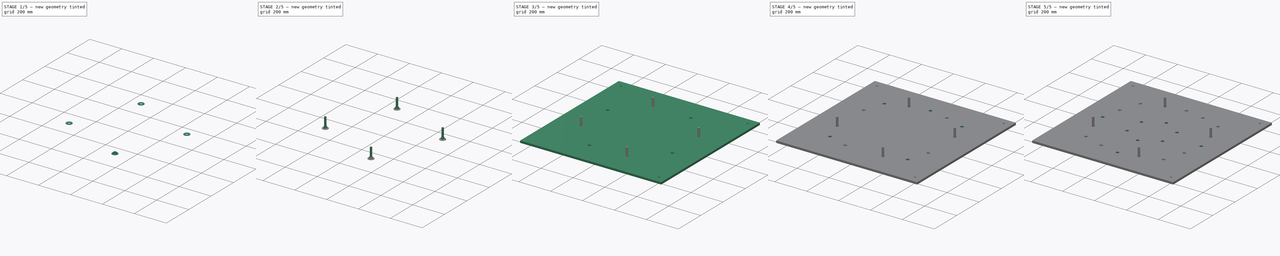
[diagram: build sequence overview — one tinted view per stage of 5, left to right]
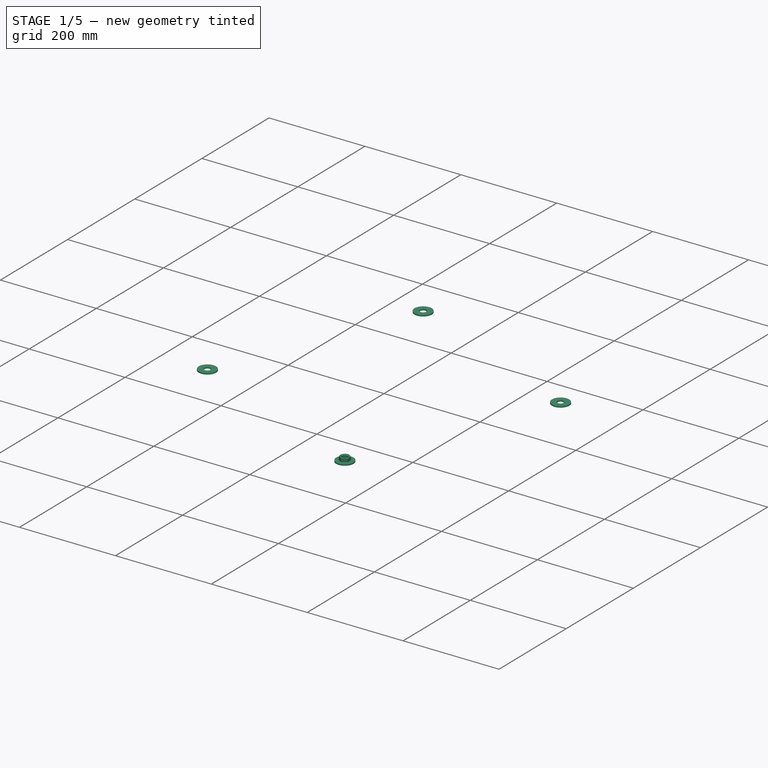
[diagram: stage 1 of 5 — iso view after this stage's code; geometry added in this stage tinted green]
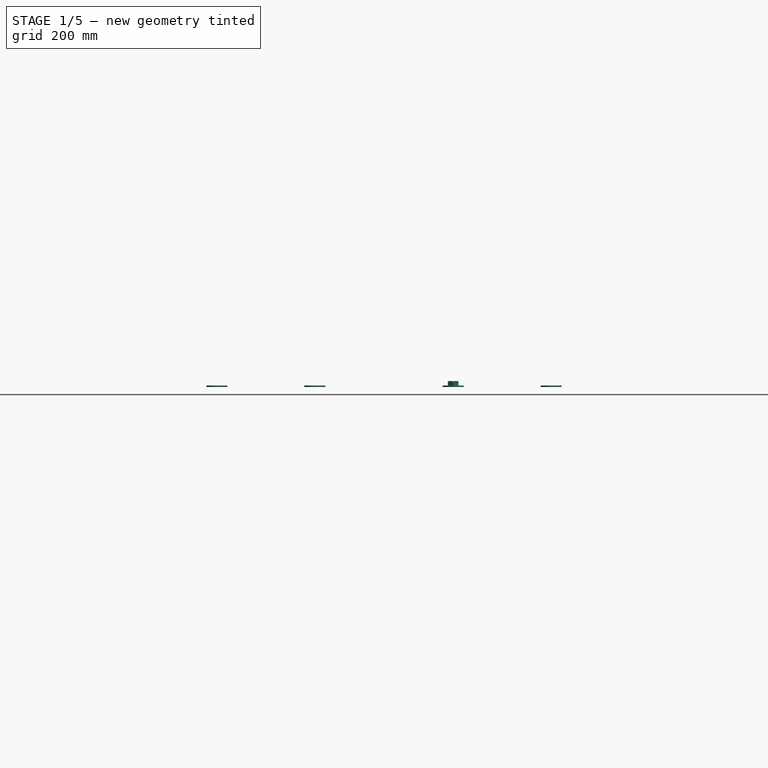
[diagram: stage 1 of 5 — front view after this stage's code; geometry added in this stage tinted green]
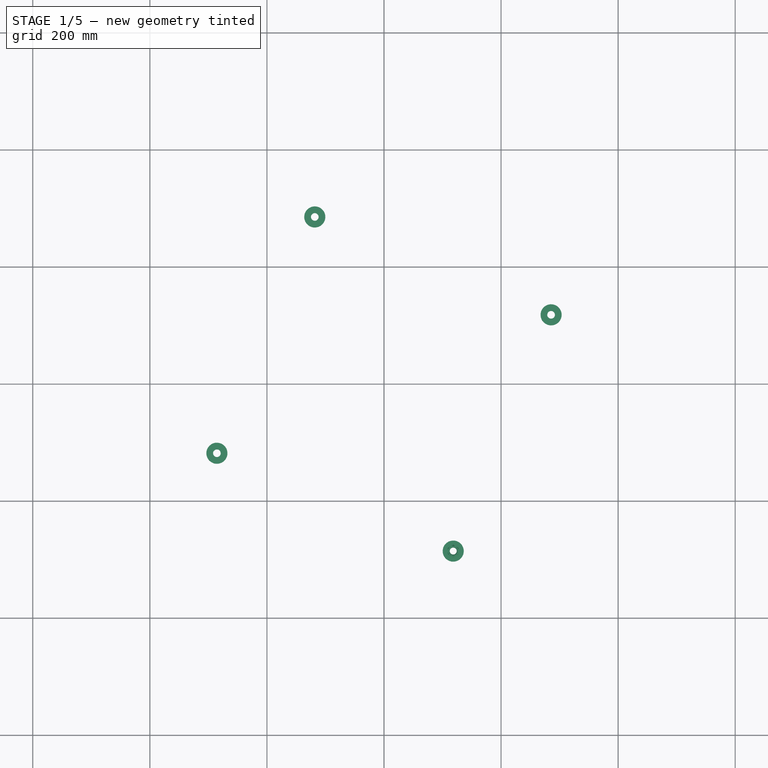
[diagram: stage 1 of 5 — top view after this stage's code; geometry added in this stage tinted green]
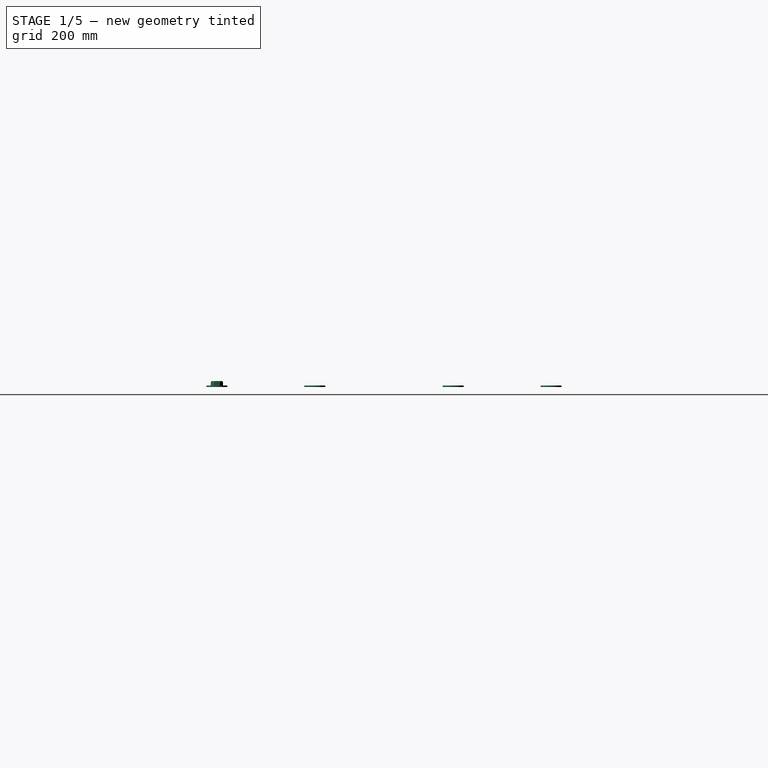
[diagram: stage 1 of 5 — right view after this stage's code; geometry added in this stage tinted green]
FCSTD DOCUMENT  (FreeCAD 1.0R39109 (Git))
Label: Stator_Mold_BoltHeadLayer_Circular
License: All rights reserved
LicenseURL: http://en.wikipedia.org/wiki/All_rights_reserved
objects: App::Link×18, Part::FeaturePython×12, App::Part×9, Sketcher::SketchObject×4, PartDesign::PolarPattern×4, PartDesign::Pocket×4, Part::Mirroring×3, PartDesign::Plane×1, PartDesign::Mirrored×1, PartDesign::SubShapeBinder×1, PartDesign::FeatureBase×1, PartDesign::MultiTransform×1, Spreadsheet::Sheet×1, PartDesign::Body×1
note: 40 computed .brp shape members not serialized (recipe doc carries the construction recipe); baked Part::Feature solids carry a one-line shape summary decoded from their .brp
EXTERNAL_REF file=Stator_Mold_Base.FCStd obj=PocketBody
EXTERNAL_REF file=../../../Master_of_Puppets.FCStd obj=Alternator
EXTERNAL_REF file=../../../Master_of_Puppets.FCStd obj=Fastener
EXTERNAL_REF file=../../../Master_of_Puppets.FCStd obj=Spreadsheet
EXTERNAL_REF file=../../../Fasteners/Fastener_Bolt_StatorMold.FCStd obj=Binder
EXTERNAL_REF file=../../../Fasteners/Fastener_HexNut_StatorMold.FCStd obj=Binder
EXTERNAL_REF file=../../../Fasteners/Fastener_Washer_StatorMold.FCStd obj=Tube

FEATURE [App::Part] Part  label="Bolts"
  Group = -> [Link,Array,Link003,Array004,Link002,Array002,Part002,Array005]
  Origin = -> Origin001
FEATURE [App::Link] Link004  label="Fastener_HexNut_Inner"
  LinkPlacement = pos=(0,128.499,0) rot=(0,0,1;0rad)
  LinkedObject = -> <external ../../../Fasteners/Fastener_HexNut_StatorMold.FCStd>#Binder
  Placement = pos=(0,128.499,0) rot=(0,0,1;0rad)
  expr: .Placement.Base.y = Spreadsheet.IslandInnerRadius
FEATURE [Part::FeaturePython] Array006  label="Nuts_Inner"  # Draft array (typed FeaturePython)
  AlwaysSyncPlacement = false
  Angle = 360
  ArrayType = 1
  Axis = (0,0,1)
  Base = -> Link004
  Center = (0,0,0)
  Count = 6
  ExpandArray = false
  Fuse = false
  IntervalAxis = (0,0,0)
  IntervalX = (50,0,0)
  IntervalY = (0,50,0)
  IntervalZ = (0,0,50)
  NumberCircles = 3
  NumberPolar = 6
  NumberX = 2
  NumberY = 2
  NumberZ = 1
  PlacementList = 6 placements: [(0,128.499,0),(-111.284,64.2497,0),(-111.284,-64.2497,0),(-1.57366e-14,-128.499,0),(111.284,-64.2497,0),(111.284,64.2497,0)]
  RadialDistance = 50
  ScaleList = (6) [(1,1,1),(1,1,1),(1,1,1),(1,1,1),(1,1,1),(1,1,1)]
  Symmetry = 1
  TangentialDistance = 25
  expr: NumberPolar = Spreadsheet.StatorMoldIslandNumberOfBolts
FEATURE [App::Link] Link005  label="Fastener_HexNut_LargeInner"
  LinkPlacement = pos=(0,309,0) rot=(0,0,1;0rad)
  LinkedObject = -> Link004
  Placement = pos=(0,309,0) rot=(0,0,1;0rad)
  expr: .Placement.Base.y = Spreadsheet.LengthMiddleHoles
FEATURE [Part::FeaturePython] Array007  label="Nuts_LargeInner"  # Draft array (typed FeaturePython)
  AlwaysSyncPlacement = false
  Angle = 360
  ArrayType = 1
  Axis = (0,0,1)
  Base = -> Link005
  Center = (0,0,0)
  Count = 4
  ExpandArray = false
  Fuse = false
  IntervalAxis = (0,0,0)
  IntervalX = (50,0,0)
  IntervalY = (0,50,0)
  IntervalZ = (0,0,50)
  NumberCircles = 3
  NumberPolar = 4
  NumberX = 2
  NumberY = 2
  NumberZ = 1
  PlacementList = 4 placements: [(0,309,0),(-309,6.86118e-14,0),(-3.78416e-14,-309,0),(309,-6.86118e-14,0)]
  RadialDistance = 50
  ScaleList = (4) [(1,1,1),(1,1,1),(1,1,1),(1,1,1)]
  Symmetry = 1
  TangentialDistance = 25
  expr: Angle = Spreadsheet.LargeInnerPolarPatternOverallAngle
  expr: NumberPolar = Spreadsheet.LargeInnerPolarPatternOccurrences
FEATURE [App::Link] Link006  label="Fastener_HexNut_LargeOuter"
  LinkPlacement = pos=(0,-344,0) rot=(0,0,1;0rad)
  LinkedObject = -> Link005
  Placement = pos=(0,-344,0) rot=(0,0,1;0rad)
  expr: .Placement.Base.y = -Spreadsheet.LargeHoleCircumradius
FEATURE [Part::FeaturePython] Array008  label="Nuts_LargeOuter"  # Draft array (typed FeaturePython)
  AlwaysSyncPlacement = false
  Angle = 360
  ArrayType = 1
  Axis = (0,0,1)
  Base = -> Link006
  Center = (0,0,0)
  Count = 4
  ExpandArray = false
  Fuse = false
  IntervalAxis = (0,0,0)
  IntervalX = (50,0,0)
  IntervalY = (0,50,0)
  IntervalZ = (0,0,50)
  NumberCircles = 3
  NumberPolar = 4
  NumberX = 2
  NumberY = 2
  NumberZ = 1
  Placement = pos=(0,0,0) rot=(0,0,1;0.785398rad)
  PlacementList = 4 placements: [(0,-344,0),(344,-7.63833e-14,0),(4.21278e-14,344,0),(-344,7.63833e-14,0)]
  RadialDistance = 50
  ScaleList = (4) [(1,1,1),(1,1,1),(1,1,1),(1,1,1)]
  Symmetry = 1
  TangentialDistance = 25
  expr: .Placement.Rotation.Angle = Spreadsheet.StatorMoldHolesSketchAngle
  expr: NumberPolar = Spreadsheet.NumberOfStatorHoles
FEATURE [App::Link] Link007  label="Fastener_HexNut_Middle"
  LinkPlacement = pos=(-118.249,-285.479,0) rot=(0,0,1;0rad)
  LinkedObject = -> Link006
  Placement = pos=(-118.249,-285.479,0) rot=(0,0,1;0rad)
  expr: .Placement.Base.x = Spreadsheet.Fastener_Middle_X
  expr: .Placement.Base.y = Spreadsheet.Fastener_Middle_Y
FEATURE [Part::Mirroring] Part__Mirroring001  label="Fastener_HexNut_Middle_Mirror"
  Base = (0,0,0)
  Normal = (1,0,0)
  Source = -> Link007
FEATURE [App::Link] Link008  label="Fastener_HexNut1"
  LinkPlacement = pos=(-397.071,397.071,0) rot=(0,0,1;0rad)
  LinkedObject = -> <external ../../../Fasteners/Fastener_HexNut_StatorMold.FCStd>#Binder
  Placement = pos=(-397.071,397.071,0) rot=(0,0,1;0rad)
  expr: .Placement.Base.x = Spreadsheet.LocatingBolt1X
  expr: .Placement.Base.y = Spreadsheet.LocatingBolt1Y
FEATURE [App::Link] Link009  label="Fastener_HexNut2"
  LinkPlacement = pos=(397.071,397.071,0) rot=(0,0,1;0rad)
  LinkedObject = -> Link008
  Placement = pos=(397.071,397.071,0) rot=(0,0,1;0rad)
  expr: .Placement.Base.x = Spreadsheet.LocatingBolt2X
  expr: .Placement.Base.y = Spreadsheet.LocatingBolt2Y
FEATURE [App::Link] Link010  label="Fastener_HexNut3"
  LinkPlacement = pos=(397.071,-397.071,0) rot=(0,0,1;0rad)
  LinkedObject = -> Link009
  Placement = pos=(397.071,-397.071,0) rot=(0,0,1;0rad)
  expr: .Placement.Base.x = Spreadsheet.LocatingBolt3X
  expr: .Placement.Base.y = Spreadsheet.LocatingBolt3Y
FEATURE [App::Part] Part005  label="Nuts_Locating"
  Group = -> [Link008,Link009,Link010]
  Origin = -> Origin006
FEATURE [App::Part] Part004  label="Nuts"
  Group = -> [Link004,Array006,Link005,Array007,Link006,Array008,Part003,Array009,Part005]
  Origin = -> Origin005
  Placement = pos=(0,0,54.5) rot=(0,0,1;0rad)
  expr: .Placement.Base.z = Spreadsheet.HexNutZ
FEATURE [App::Link] Link011  label="Washer_Locating1"
  LinkPlacement = pos=(-397.071,397.071,0) rot=(0,0,1;0rad)
  LinkedObject = -> <external ../../../Fasteners/Fastener_Washer_StatorMold.FCStd>#Tube
  Placement = pos=(-397.071,397.071,0) rot=(0,0,1;0rad)
  expr: .Placement.Base.x = Spreadsheet.LocatingBolt1X
  expr: .Placement.Base.y = Spreadsheet.LocatingBolt1Y
FEATURE [App::Link] Link012  label="Washer_Locating2"
  LinkPlacement = pos=(397.071,397.071,0) rot=(0,0,1;0rad)
  LinkedObject = -> Link011
  Placement = pos=(397.071,397.071,0) rot=(0,0,1;0rad)
  expr: .Placement.Base.x = Spreadsheet.LocatingBolt2X
  expr: .Placement.Base.y = Spreadsheet.LocatingBolt2Y
FEATURE [App::Link] Link013  label="Washer_Locating3"
  LinkPlacement = pos=(397.071,-397.071,0) rot=(0,0,1;0rad)
  LinkedObject = -> Link012
  Placement = pos=(397.071,-397.071,0) rot=(0,0,1;0rad)
  expr: .Placement.Base.x = Spreadsheet.LocatingBolt3X
  expr: .Placement.Base.y = Spreadsheet.LocatingBolt3Y
FEATURE [App::Part] Part006  label="Washers_Locating"
  Group = -> [Link011,Link012,Link013]
  Origin = -> Origin007
FEATURE [App::Link] Link014  label="Washer_Middle"
  LinkPlacement = pos=(-118.249,-285.479,0) rot=(0,0,1;0rad)
  LinkedObject = -> <external ../../../Fasteners/Fastener_Washer_StatorMold.FCStd>#Tube
  Placement = pos=(-118.249,-285.479,0) rot=(0,0,1;0rad)
  expr: .Placement.Base.x = Spreadsheet.Fastener_Middle_X
  expr: .Placement.Base.y = Spreadsheet.Fastener_Middle_Y
FEATURE [Part::Mirroring] Part__Mirroring002  label="Washer_Middle_Mirror"
  Base = (0,0,0)
  Normal = (1,0,0)
  Source = -> Link014
FEATURE [App::Part] Part008  label="Washers_Middle_Part"
  Group = -> [Link014,Part__Mirroring002]
  Origin = -> Origin009
FEATURE [Part::FeaturePython] Array010  label="Washers_Middle"  # Draft array (typed FeaturePython)
  AlwaysSyncPlacement = false
  Angle = 360
  ArrayType = 1
  Axis = (0,0,1)
  Base = -> Part008
  Center = (0,0,0)
  Count = 4
  ExpandArray = false
  Fuse = false
  IntervalAxis = (0,0,0)
  IntervalX = (50,0,0)
  IntervalY = (0,50,0)
  IntervalZ = (0,0,50)
  NumberCircles = 3
  NumberPolar = 4
  NumberX = 2
  NumberY = 2
  NumberZ = 1
  PlacementList = 4 placements: [(0,0,0),(0,0,0),(0,0,0),(0,0,0)]
  RadialDistance = 50
  ScaleList = (4) [(1,1,1),(1,1,1),(1,1,1),(1,1,1)]
  Symmetry = 1
  TangentialDistance = 25
  expr: NumberPolar = Spreadsheet.NumberOfStatorHoles
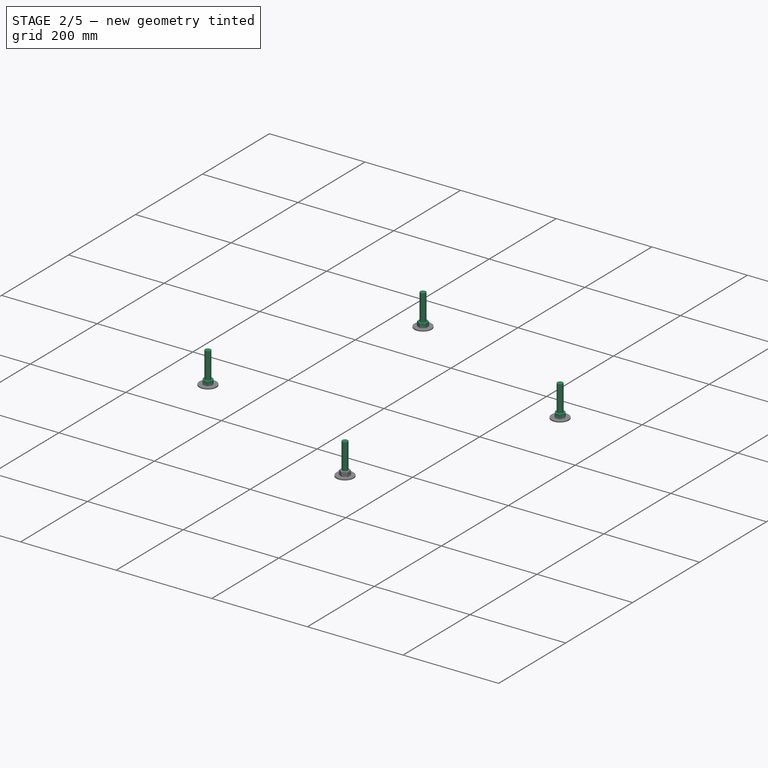
[diagram: stage 2 of 5 — iso view after this stage's code; geometry added in this stage tinted green]
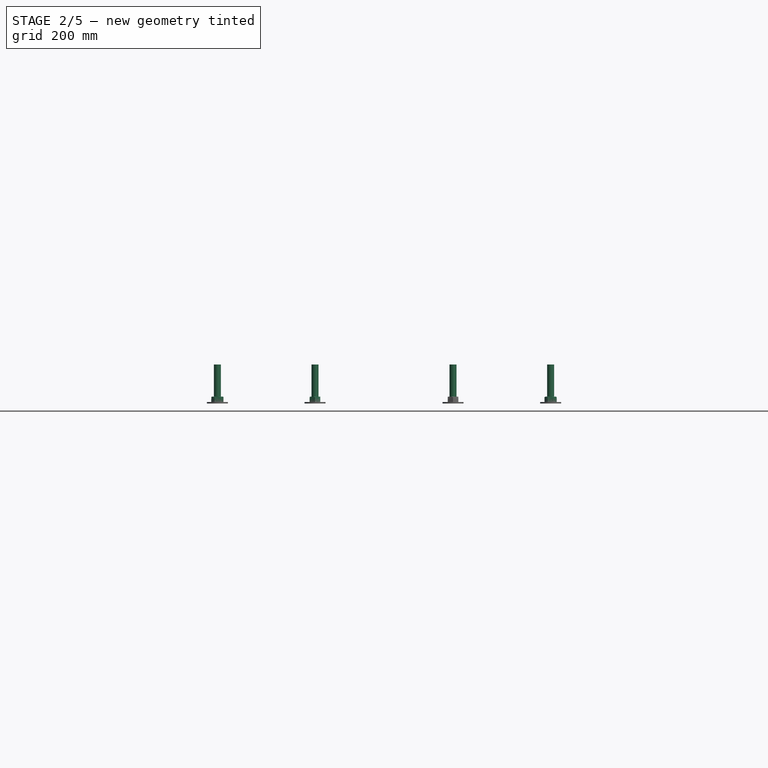
[diagram: stage 2 of 5 — front view after this stage's code; geometry added in this stage tinted green]
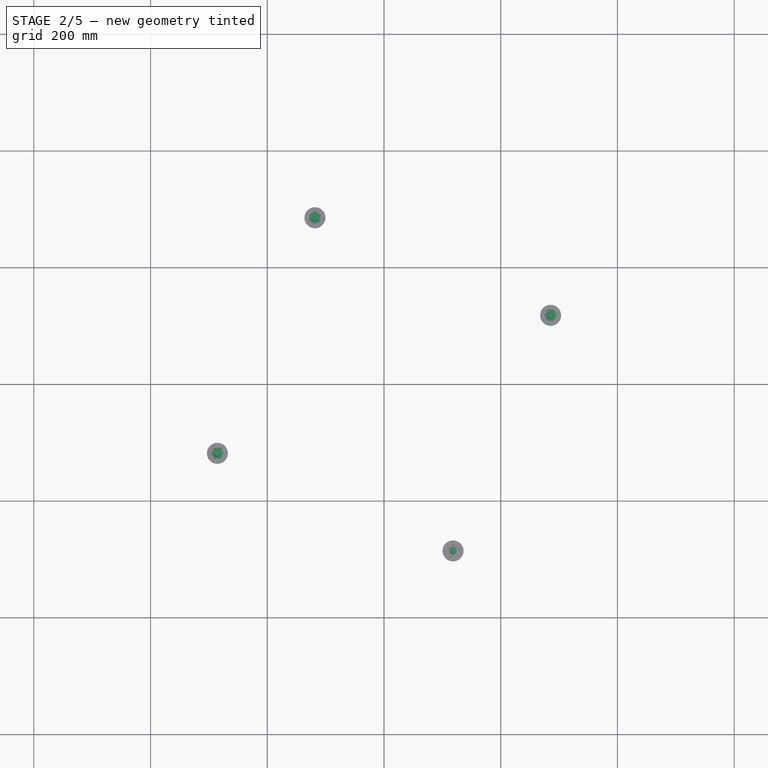
[diagram: stage 2 of 5 — top view after this stage's code; geometry added in this stage tinted green]
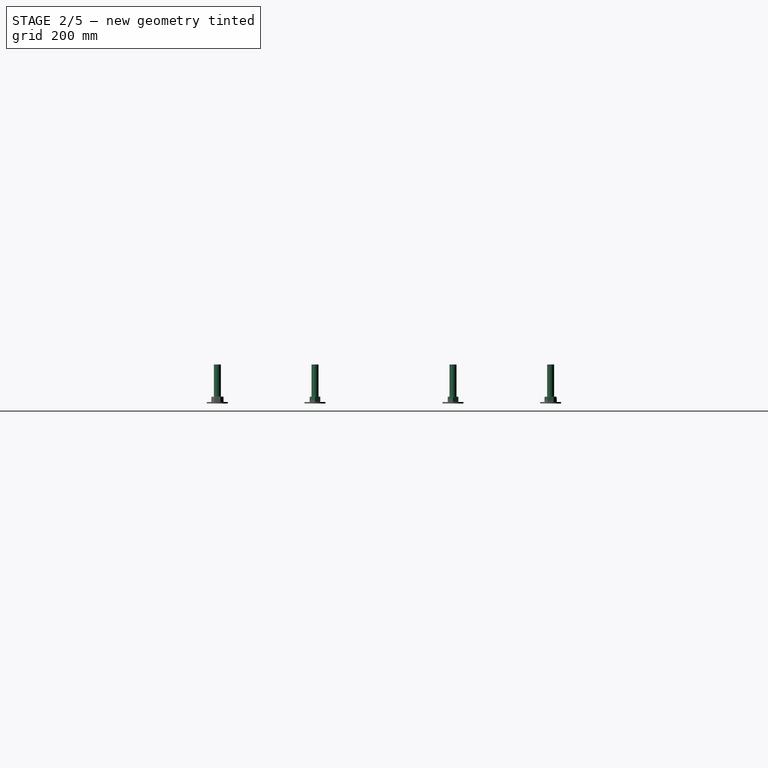
[diagram: stage 2 of 5 — right view after this stage's code; geometry added in this stage tinted green]
FEATURE [PartDesign::Body] Body  label="Stator_Mold_BoltHeadLayer"
  AllowCompound = false
  BaseFeature = -> Binder
  Group = -> [BaseFeature,DatumPlane001,Sketch005,Pocket001,MultiTransform,Mirrored,PolarPattern002,Sketch006,Pocket002,PolarPattern003,Sketch007,Pocket003,PolarPattern004,Sketch,Pocket,PolarPattern]
  Openafpm_Flat = true
  Origin = -> Origin
  Tip = -> PolarPattern
FEATURE [App::Link] Link  label="Fastener_Bolt_Inner"
  LinkPlacement = pos=(0,128.499,11.83) rot=(0,0,1;0.523599rad)
  LinkedObject = -> <external ../../../Fasteners/Fastener_Bolt_StatorMold.FCStd>#Binder
  Placement = pos=(0,128.499,11.83) rot=(0,0,1;0.523599rad)
  Scale = -1
  ScaleVector = (-1,-1,-1)
  expr: .Placement.Base.y = Spreadsheet.IslandInnerRadius
  expr: .Placement.Base.z = Spreadsheet.HexNutThickness
  expr: .Placement.Rotation.Angle = Spreadsheet.BoltAngle
FEATURE [Part::FeaturePython] Array  label="Bolts_Inner"  # Draft array (typed FeaturePython)
  AlwaysSyncPlacement = false
  Angle = 360
  ArrayType = 1
  Axis = (0,0,1)
  Base = -> Link
  Center = (0,0,0)
  Count = 6
  ExpandArray = false
  Fuse = false
  IntervalAxis = (0,0,0)
  IntervalX = (50,0,0)
  IntervalY = (0,50,0)
  IntervalZ = (0,0,50)
  NumberCircles = 3
  NumberPolar = 6
  NumberX = 2
  NumberY = 2
  NumberZ = 1
  PlacementList = 6 placements: [(0,128.499,11.83),(-111.284,64.2497,11.83),(-111.284,-64.2497,11.83),(-1.57366e-14,-128.499,11.83),(111.284,-64.2497,11.83),(111.284,64.2497,11.83)]
  RadialDistance = 50
  ScaleList = (6) [(1,1,1),(1,1,1),(1,1,1),(1,1,1),(1,1,1),(1,1,1)]
  Symmetry = 1
  TangentialDistance = 25
  expr: NumberPolar = Spreadsheet.StatorMoldIslandNumberOfBolts
FEATURE [App::Link] Link001  label="Fastener_Bolt_Middle"
  LinkPlacement = pos=(-118.249,-285.479,11.83) rot=(0,0,1;0rad)
  LinkedObject = -> Link
  Placement = pos=(-118.249,-285.479,11.83) rot=(0,0,1;0rad)
  expr: .Placement.Base.x = Spreadsheet.Fastener_Middle_X
  expr: .Placement.Base.y = Spreadsheet.Fastener_Middle_Y
  expr: .Placement.Base.z = Spreadsheet.HexNutThickness
FEATURE [App::Link] Link002  label="Fastener_Bolt_LargeOuter"
  LinkPlacement = pos=(0,-344,11.83) rot=(0,0,1;0.523599rad)
  LinkedObject = -> Link001
  Placement = pos=(0,-344,11.83) rot=(0,0,1;0.523599rad)
  expr: .Placement.Base.y = -Spreadsheet.LargeHoleCircumradius
  expr: .Placement.Base.z = Spreadsheet.HexNutThickness
  expr: .Placement.Rotation.Angle = Spreadsheet.BoltAngle
FEATURE [Part::FeaturePython] Array002  label="Bolts_LargeOuter"  # Draft array (typed FeaturePython)
  AlwaysSyncPlacement = false
  Angle = 360
  ArrayType = 1
  Axis = (0,0,1)
  Base = -> Link002
  Center = (0,0,0)
  Count = 4
  ExpandArray = false
  Fuse = false
  IntervalAxis = (0,0,0)
  IntervalX = (50,0,0)
  IntervalY = (0,50,0)
  IntervalZ = (0,0,50)
  NumberCircles = 3
  NumberPolar = 4
  NumberX = 2
  NumberY = 2
  NumberZ = 1
  Placement = pos=(0,0,0) rot=(0,0,1;0.785398rad)
  PlacementList = 4 placements: [(0,-344,11.83),(344,-7.63833e-14,11.83),(4.21278e-14,344,11.83),(-344,7.63833e-14,11.83)]
  RadialDistance = 50
  ScaleList = (4) [(1,1,1),(1,1,1),(1,1,1),(1,1,1)]
  Symmetry = 1
  TangentialDistance = 25
  expr: .Placement.Rotation.Angle = Spreadsheet.StatorMoldHolesSketchAngle
  expr: NumberPolar = Spreadsheet.NumberOfStatorHoles
FEATURE [App::Link] Link003  label="Fastener_Bolt_LargeInner"
  LinkPlacement = pos=(0,309,11.83) rot=(0,0,1;0.523599rad)
  LinkedObject = -> Link001
  Placement = pos=(0,309,11.83) rot=(0,0,1;0.523599rad)
  expr: .Placement.Base.y = Spreadsheet.LengthMiddleHoles
  expr: .Placement.Base.z = Spreadsheet.HexNutThickness
  expr: .Placement.Rotation.Angle = Spreadsheet.BoltAngle
FEATURE [Part::FeaturePython] Array004  label="Bolts_LargeInner"  # Draft array (typed FeaturePython)
  AlwaysSyncPlacement = false
  Angle = 360
  ArrayType = 1
  Axis = (0,0,1)
  Base = -> Link003
  Center = (0,0,0)
  Count = 4
  ExpandArray = false
  Fuse = false
  IntervalAxis = (0,0,0)
  IntervalX = (50,0,0)
  IntervalY = (0,50,0)
  IntervalZ = (0,0,50)
  NumberCircles = 3
  NumberPolar = 4
  NumberX = 2
  NumberY = 2
  NumberZ = 1
  PlacementList = 4 placements: [(0,309,11.83),(-309,6.86118e-14,11.83),(-3.78416e-14,-309,11.83),(309,-6.86118e-14,11.83)]
  RadialDistance = 50
  ScaleList = (4) [(1,1,1),(1,1,1),(1,1,1),(1,1,1)]
  Symmetry = 1
  TangentialDistance = 25
  expr: Angle = Spreadsheet.LargeInnerPolarPatternOverallAngle
  expr: NumberPolar = Spreadsheet.LargeInnerPolarPatternOccurrences
FEATURE [Part::Mirroring] Part__Mirroring  label="Fastener_Bolt_Middle_Mirror"
  Base = (0,0,0)
  Normal = (1,0,0)
  Source = -> Link001
FEATURE [App::Part] Part002  label="Bolts_Middle_Part"
  Group = -> [Part__Mirroring,Link001]
  Origin = -> Origin003
FEATURE [Part::FeaturePython] Array005  label="Bolts_Middle"  # Draft array (typed FeaturePython)
  AlwaysSyncPlacement = false
  Angle = 360
  ArrayType = 1
  Axis = (0,0,1)
  Base = -> Part002
  Center = (0,0,0)
  Count = 4
  ExpandArray = false
  Fuse = false
  IntervalAxis = (0,0,0)
  IntervalX = (50,0,0)
  IntervalY = (0,50,0)
  IntervalZ = (0,0,50)
  NumberCircles = 3
  NumberPolar = 4
  NumberX = 2
  NumberY = 2
  NumberZ = 1
  PlacementList = 4 placements: [(0,0,0),(0,0,0),(0,0,0),(0,0,0)]
  RadialDistance = 50
  ScaleList = (4) [(1,1,1),(1,1,1),(1,1,1),(1,1,1)]
  Symmetry = 1
  TangentialDistance = 25
  expr: NumberPolar = Spreadsheet.NumberOfStatorHoles
FEATURE [App::Part] Part003  label="Nuts_Middle_Part"
  Group = -> [Part__Mirroring001,Link007]
  Origin = -> Origin004
FEATURE [Part::FeaturePython] Array009  label="Nuts_Middle"  # Draft array (typed FeaturePython)
  AlwaysSyncPlacement = false
  Angle = 360
  ArrayType = 1
  Axis = (0,0,1)
  Base = -> Part003
  Center = (0,0,0)
  Count = 4
  ExpandArray = false
  Fuse = false
  IntervalAxis = (0,0,0)
  IntervalX = (50,0,0)
  IntervalY = (0,50,0)
  IntervalZ = (0,0,50)
  NumberCircles = 3
  NumberPolar = 4
  NumberX = 2
  NumberY = 2
  NumberZ = 1
  PlacementList = 4 placements: [(0,0,0),(0,0,0),(0,0,0),(0,0,0)]
  RadialDistance = 50
  ScaleList = (4) [(1,1,1),(1,1,1),(1,1,1),(1,1,1)]
  Symmetry = 1
  TangentialDistance = 25
  expr: NumberPolar = Spreadsheet.NumberOfStatorHoles
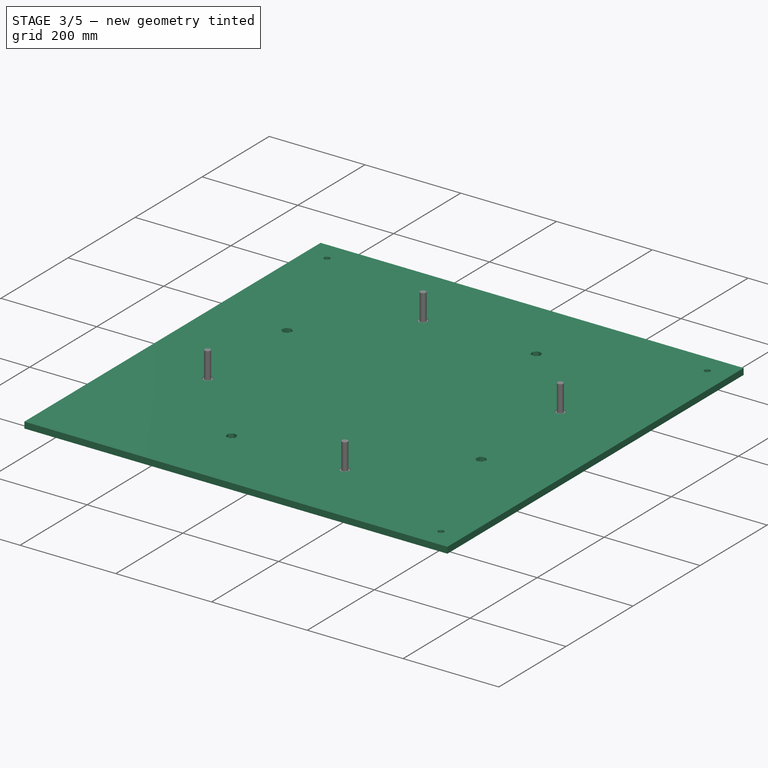
[diagram: stage 3 of 5 — iso view after this stage's code; geometry added in this stage tinted green]
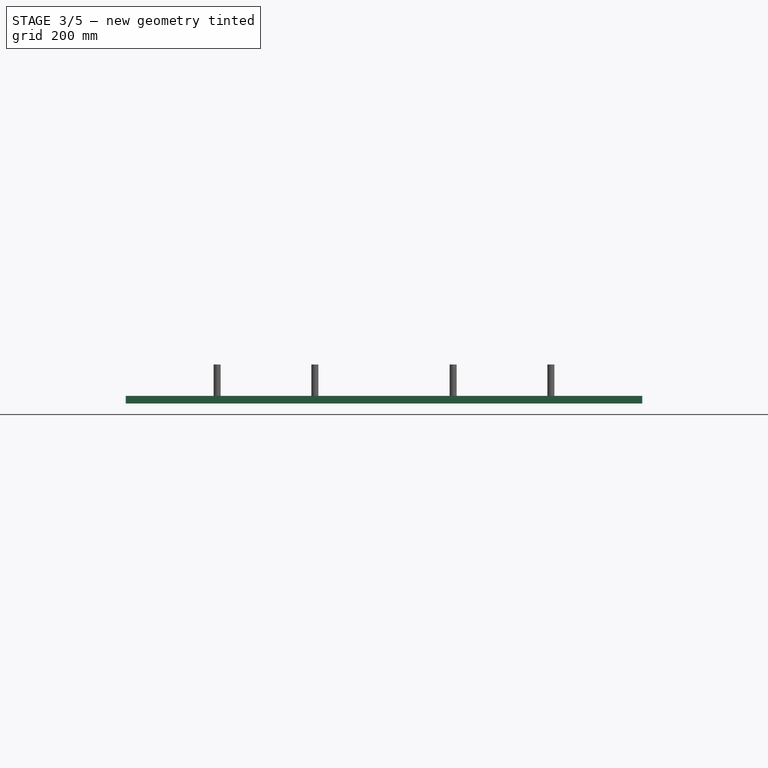
[diagram: stage 3 of 5 — front view after this stage's code; geometry added in this stage tinted green]
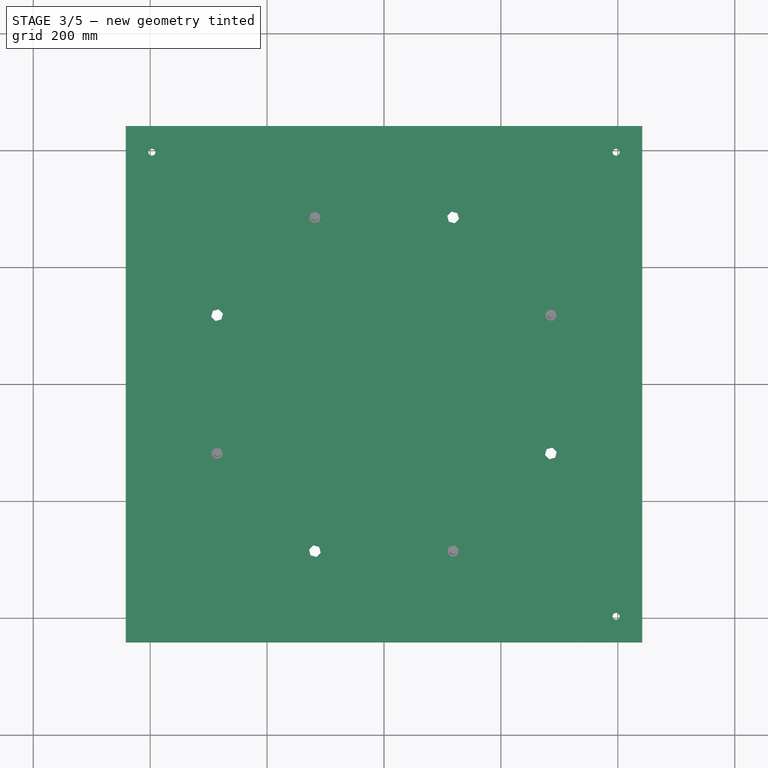
[diagram: stage 3 of 5 — top view after this stage's code; geometry added in this stage tinted green]
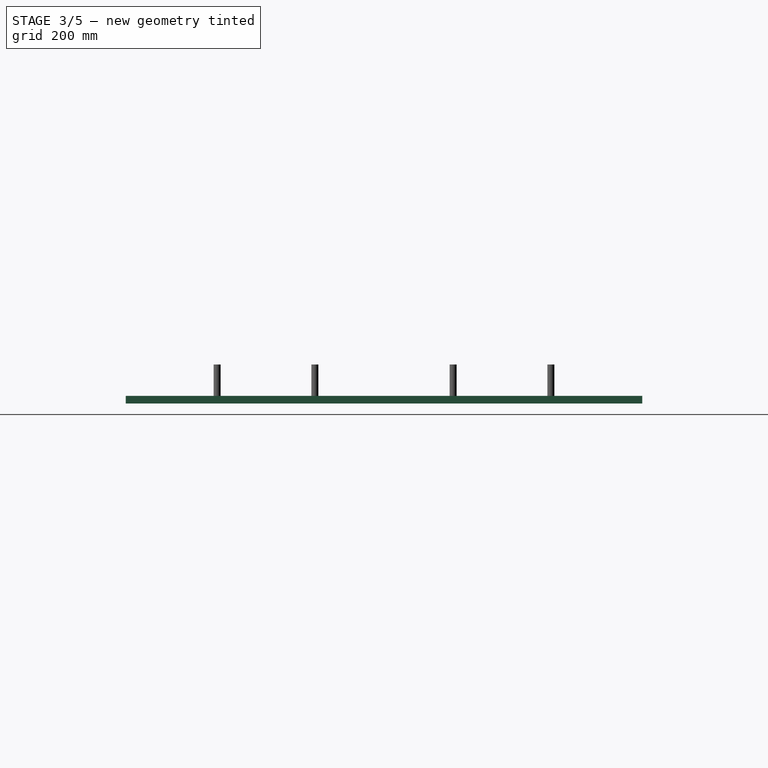
[diagram: stage 3 of 5 — right view after this stage's code; geometry added in this stage tinted green]
FEATURE [PartDesign::Plane] DatumPlane001  label="DatumPlane"
  AttachmentOffset = pos=(0,0,13) rot=(0,0,1;0rad)
  AttachmentSupport = -> [XY_Plane]
  Length = 1060.2
  MapMode = 5
  Placement = pos=(0,0,13) rot=(0,0,1;0rad)
  ResizeMode = 0
  Width = 1060.2
  expr: .AttachmentOffset.Base.z = Spreadsheet.StatorThickness
FEATURE [Sketcher::SketchObject] Sketch005  label="MiddleHolesSketch"
  ArcFitTolerance = 0
  AttachmentOffset = pos=(0,0,0) rot=(0,0,1;0.785398rad)
  AttachmentSupport = -> [DatumPlane001]
  FullyConstrained = true
  MakeInternals = false
  MapMode = 5
  Placement = pos=(0,0,13) rot=(0,0,1;0.785398rad)
  expr: .AttachmentOffset.Rotation.Angle = Spreadsheet.StatorMoldHolesSketchAngle
  expr: Constraints[16] = Spreadsheet.EarAngle
  expr: Constraints[20] = Spreadsheet.LargeHoleAngle
  expr: Constraints[3] = Spreadsheet.LengthMiddleHoles
  expr: Constraints[40] = Spreadsheet.Inradius
  expr: Constraints[6] = Spreadsheet.EarSize
  sketch-geometry (17):
    g0: Circle [constr] CenterX=0 CenterY=0 CenterZ=0 NormalX=0 NormalY=0 NormalZ=1 AngleXU=0 Radius=309
    g1: LineSegment [constr] StartX=0 StartY=0 StartZ=0 EndX=0 EndY=-309 EndZ=0
    g2: Circle [constr] CenterX=0 CenterY=-309 CenterZ=0 NormalX=0 NormalY=0 NormalZ=1 AngleXU=0 Radius=35
    g3: LineSegment [constr] StartX=16.18 StartY=-340.036 StartZ=0 EndX=142.846 EndY=-274 EndZ=0
    g4: LineSegment [constr] StartX=-16.18 StartY=-340.036 StartZ=0 EndX=-142.846 EndY=-274 EndZ=0
    g5: LineSegment [constr] StartX=0 StartY=0 StartZ=0 EndX=-218.496 EndY=-218.496 EndZ=0
    g6: LineSegment [constr] StartX=0 StartY=0 StartZ=0 EndX=218.496 EndY=-218.496 EndZ=0
    g7: ArcOfCircle [constr] CenterX=0 CenterY=0 CenterZ=0 NormalX=0 NormalY=0 NormalZ=1 AngleXU=0 Radius=309 StartAngle=3.92699 EndAngle=4.23182
    g8: ArcOfCircle [constr] CenterX=0 CenterY=0 CenterZ=0 NormalX=0 NormalY=0 NormalZ=1 AngleXU=0 Radius=309 StartAngle=5.19296 EndAngle=5.49779
    g9: LineSegment [constr] StartX=0 StartY=0 StartZ=0 EndX=-118.249 EndY=-285.479 EndZ=0
    g10: LineSegment StartX=-118.249 StartY=-295.869 StartZ=0 EndX=-109.251 EndY=-290.674 EndZ=0
    g11: LineSegment StartX=-109.251 StartY=-290.674 StartZ=0 EndX=-109.251 EndY=-280.284 EndZ=0
    g12: LineSegment StartX=-109.251 StartY=-280.284 StartZ=0 EndX=-118.249 EndY=-275.089 EndZ=0
    g13: LineSegment StartX=-118.249 StartY=-275.089 StartZ=0 EndX=-127.247 EndY=-280.284 EndZ=0
    g14: LineSegment StartX=-127.247 StartY=-280.284 StartZ=0 EndX=-127.247 EndY=-290.674 EndZ=0
    g15: LineSegment StartX=-127.247 StartY=-290.674 StartZ=0 EndX=-118.249 EndY=-295.869 EndZ=0
    g16: Circle [constr] CenterX=-118.249 CenterY=-285.479 CenterZ=0 NormalX=0 NormalY=0 NormalZ=1 AngleXU=0 Radius=10.39
  constraints (40):
    c: Coincident(g0,g-1)
    c: Coincident(g1,g-1)
    c: Vertical(g1)
    c: Radius(g0) = 309
    c: Coincident(g2,g1)
    c: Tangent(g3,g0)
    c: Radius(g2) = 35
    c: Symmetric(g6,g5,g1)
    c: Coincident(g7,g5)
    c: Coincident(g7,g4)
    c: Coincident(g8,g6)
    c: Coincident(g8,g3)
    c: Coincident(g6,g5)
    c: Coincident(g5,g7)
    c: Coincident(g5,g-1)
    c: Coincident(g8,g5)
    c: Angle(g5,g6) = 1.5708
    c: Tangent(g3,g2) = -1.5708
    c: Tangent(g4,g0) = 1.5708
    c: Coincident(g9,g-1)
    c: Angle(g5,g9) = 0.392699
    c: Tangent(g4,g2) = 1.5708
    c: PointOnObject(g1,g0)
    c: Coincident(g10,g11)
    c: Coincident(g11,g12)
    c: Coincident(g12,g13)
    c: Coincident(g13,g14)
    c: Coincident(g14,g15)
    c: Coincident(g15,g10)
    c: Equal(g10, g11-g15) x5
    c: PointOnObject(g10,g16)
    c: PointOnObject(g12,g16)
    c: PointOnObject(g13,g16)
    c: PointOnObject(g14,g16)
    c: PointOnObject(g15,g16)
    c: Coincident(g16,g9)
    c: Radius(g16) = 10.39
    c: PointOnObject(g11,g16)
    c: Vertical(g10,g12)
    c: PointOnObject(g9,g0)
FEATURE [PartDesign::Mirrored] Mirrored  label="MiddleHolesMirrored"
  MirrorPlane = -> Sketch005 [V_Axis]
  Suppressed = false
  TransformMode = 0
FEATURE [PartDesign::PolarPattern] PolarPattern002  label="MiddleHolesPolarPattern"
  Angle = 360
  Axis = -> Sketch005 [N_Axis]
  Mode = 0
  Occurrences = 4
  Offset = 120
  Suppressed = false
  TransformMode = 0
  expr: Occurrences = Spreadsheet.NumberOfStatorHoles
FEATURE [Sketcher::SketchObject] Sketch006  label="LargeHoleOuterSketch"
  ArcFitTolerance = 0
  AttachmentOffset = pos=(0,0,0) rot=(0,0,1;0.785398rad)
  AttachmentSupport = -> [DatumPlane001]
  FullyConstrained = true
  MakeInternals = false
  MapMode = 5
  Placement = pos=(0,0,13) rot=(0,0,1;0.785398rad)
  expr: .AttachmentOffset.Rotation.Angle = Spreadsheet.StatorMoldHolesSketchAngle
  expr: Constraints[16] = Spreadsheet.Inradius
  expr: Constraints[1] = Spreadsheet.LargeHoleCircumradius
  sketch-geometry (14):
    g0: Circle [constr] CenterX=0 CenterY=0 CenterZ=0 NormalX=0 NormalY=0 NormalZ=1 AngleXU=0 Radius=344
    g1: LineSegment StartX=5.195 StartY=-335.002 StartZ=0 EndX=-5.195 EndY=-335.002 EndZ=0
    g2: LineSegment StartX=-5.195 StartY=-335.002 StartZ=0 EndX=-10.39 EndY=-344 EndZ=0
    g3: LineSegment StartX=-10.39 StartY=-344 StartZ=0 EndX=-5.195 EndY=-352.998 EndZ=0
    g4: LineSegment StartX=-5.195 StartY=-352.998 StartZ=0 EndX=5.195 EndY=-352.998 EndZ=0
    g5: LineSegment StartX=5.195 StartY=-352.998 StartZ=0 EndX=10.39 EndY=-344 EndZ=0
    g6: LineSegment StartX=10.39 StartY=-344 StartZ=0 EndX=5.195 EndY=-335.002 EndZ=0
    g7: Circle [constr] CenterX=9e-16 CenterY=-344 CenterZ=0 NormalX=0 NormalY=0 NormalZ=1 AngleXU=0 Radius=10.39
    g8: LineSegment [constr] StartX=-5.195 StartY=-352.998 StartZ=0 EndX=9e-16 EndY=-344 EndZ=0
    g9: LineSegment [constr] StartX=9e-16 StartY=-344 StartZ=0 EndX=5.195 EndY=-335.002 EndZ=0
    g10: LineSegment [constr] StartX=-5.195 StartY=-335.002 StartZ=0 EndX=9e-16 EndY=-344 EndZ=0
    g11: LineSegment [constr] StartX=9e-16 StartY=-344 StartZ=0 EndX=5.195 EndY=-352.998 EndZ=0
    g12: LineSegment [constr] StartX=-10.39 StartY=-344 StartZ=0 EndX=0 EndY=-344 EndZ=0
    g13: LineSegment [constr] StartX=9e-16 StartY=-344 StartZ=0 EndX=10.39 EndY=-344 EndZ=0
  constraints (35):
    c: Coincident(g0,g-1)
    c: Radius(g0) = 344
    c: Coincident(g1,g2)
    c: Coincident(g2,g3)
    c: Coincident(g3,g4)
    c: Coincident(g4,g5)
    c: Coincident(g5,g6)
    c: Coincident(g6,g1)
    c: PointOnObject(g1,g7)
    c: PointOnObject(g2,g7)
    c: PointOnObject(g3,g7)
    c: PointOnObject(g4,g7)
    c: PointOnObject(g5,g7)
    c: PointOnObject(g6,g7)
    c: PointOnObject(g7,g0)
    c: PointOnObject(g7,g-2)
    c: Radius(g7) = 10.39
    c: Coincident(g8,g3)
    c: Coincident(g8,g7)
    c: Coincident(g9,g8)
    c: Coincident(g9,g1)
    c: Coincident(g1,g10)
    c: Coincident(g10,g8)
    c: Coincident(g10,g11)
    c: Coincident(g2,g12)
    c: Coincident(g12,g8)
    c: Coincident(g12,g13)
    c: Coincident(g13,g5)
    c: Angle(g9,g10) = 1.0472
    c: Angle(g13,g9) = 1.0472
    c: Angle(g11,g13) = 1.0472
    c: Angle(g8,g11) = 1.0472
    c: Angle(g12,g8) = 1.0472
    c: Horizontal(g2,g5)
    c: Coincident(g11,g4)
FEATURE [Sketcher::SketchObject] Sketch007  label="LargeHoleInnerSketch"
  ArcFitTolerance = 0
  AttachmentSupport = -> [DatumPlane001]
  FullyConstrained = true
  MakeInternals = false
  MapMode = 5
  Placement = pos=(0,0,13) rot=(0,0,1;0rad)
  expr: Constraints[1] = Spreadsheet.LengthMiddleHoles
  expr: Constraints[31] = Spreadsheet.Inradius
  sketch-geometry (14):
    g0: Circle [constr] CenterX=0 CenterY=0 CenterZ=0 NormalX=0 NormalY=0 NormalZ=1 AngleXU=0 Radius=309
    g1: LineSegment StartX=-5.195 StartY=317.998 StartZ=0 EndX=-10.39 EndY=309 EndZ=0
    g2: LineSegment StartX=-10.39 StartY=309 StartZ=0 EndX=-5.195 EndY=300.002 EndZ=0
    g3: LineSegment StartX=-5.195 StartY=300.002 StartZ=0 EndX=5.195 EndY=300.002 EndZ=0
    g4: LineSegment StartX=5.195 StartY=300.002 StartZ=0 EndX=10.39 EndY=309 EndZ=0
    g5: LineSegment StartX=10.39 StartY=309 StartZ=0 EndX=5.195 EndY=317.998 EndZ=0
    g6: LineSegment StartX=5.195 StartY=317.998 StartZ=0 EndX=-5.195 EndY=317.998 EndZ=0
    g7: Circle [constr] CenterX=0 CenterY=309 CenterZ=0 NormalX=0 NormalY=0 NormalZ=1 AngleXU=0 Radius=10.39
    g8: LineSegment [constr] StartX=-5.195 StartY=317.998 StartZ=0 EndX=0 EndY=309 EndZ=0
    g9: LineSegment [constr] StartX=0 StartY=309 StartZ=0 EndX=5.195 EndY=300.002 EndZ=0
    g10: LineSegment [constr] StartX=-5.195 StartY=300.002 StartZ=0 EndX=0 EndY=309 EndZ=0
    g11: LineSegment [constr] StartX=0 StartY=309 StartZ=0 EndX=5.195 EndY=317.998 EndZ=0
    g12: LineSegment [constr] StartX=-10.39 StartY=309 StartZ=0 EndX=0 EndY=309 EndZ=0
    g13: LineSegment [constr] StartX=0 StartY=309 StartZ=0 EndX=10.39 EndY=309 EndZ=0
  constraints (35):
    c: Coincident(g0,g-1)
    c: Radius(g0) = 309
    c: PointOnObject(g7,g0)
    c: Coincident(g1,g2)
    c: Coincident(g2,g3)
    c: Coincident(g3,g4)
    c: Coincident(g4,g5)
    c: Coincident(g5,g6)
    c: Coincident(g6,g1)
    c: PointOnObject(g1,g7)
    c: PointOnObject(g2,g7)
    c: PointOnObject(g3,g7)
    c: PointOnObject(g4,g7)
    c: PointOnObject(g5,g7)
    c: PointOnObject(g6,g7)
    c: Coincident(g8,g1)
    c: Coincident(g9,g8)
    c: Coincident(g9,g3)
    c: Coincident(g10,g2)
    c: Coincident(g10,g8)
    c: Coincident(g11,g8)
    c: Coincident(g11,g5)
    c: Coincident(g12,g1)
    c: Coincident(g12,g8)
    c: Coincident(g13,g8)
    c: Coincident(g13,g4)
    c: Angle(g11,g8) = 1.0472
    c: Angle(g13,g11) = 1.0472
    c: Angle(g9,g13) = 1.0472
    c: Angle(g10,g9) = 1.0472
    c: Angle(g12,g10) = 1.0472
    c: Radius(g7) = 10.39
    c: Horizontal(g4,g1)
    c: Coincident(g8,g7)
    c: PointOnObject(g7,g-2)
FEATURE [PartDesign::SubShapeBinder] Binder
  BindCopyOnChange = 0
  BindMode = 0
  ClaimChildren = true
  Context = -> Body [Binder.]
  Fuse = false
  MakeFace = true
  OffsetFill = false
  OffsetIntersection = false
  OffsetJoinType = 0
  OffsetOpenResult = false
  PartialLoad = false
  Refine = true
  Relative = true
  Support = -> [<external Stator_Mold_Base.FCStd>#PocketBody]
  _Version = 2
FEATURE [PartDesign::FeatureBase] BaseFeature
  BaseFeature = -> Binder
  Suppressed = false
FEATURE [PartDesign::Pocket] Pocket001  label="MiddleHolesPocket"
  BaseFeature = -> BaseFeature
  Direction = (0,0,-1)
  Length = 5
  Length2 = 100
  Profile = -> Sketch005
  Suppressed = false
  Type = 1
FEATURE [PartDesign::MultiTransform] MultiTransform  label="MiddleHolesMultiTransform"
  BaseFeature = -> Pocket001
  Originals = -> [Pocket001]
  Suppressed = false
  TransformMode = 0
  Transformations = -> [Mirrored,PolarPattern002]
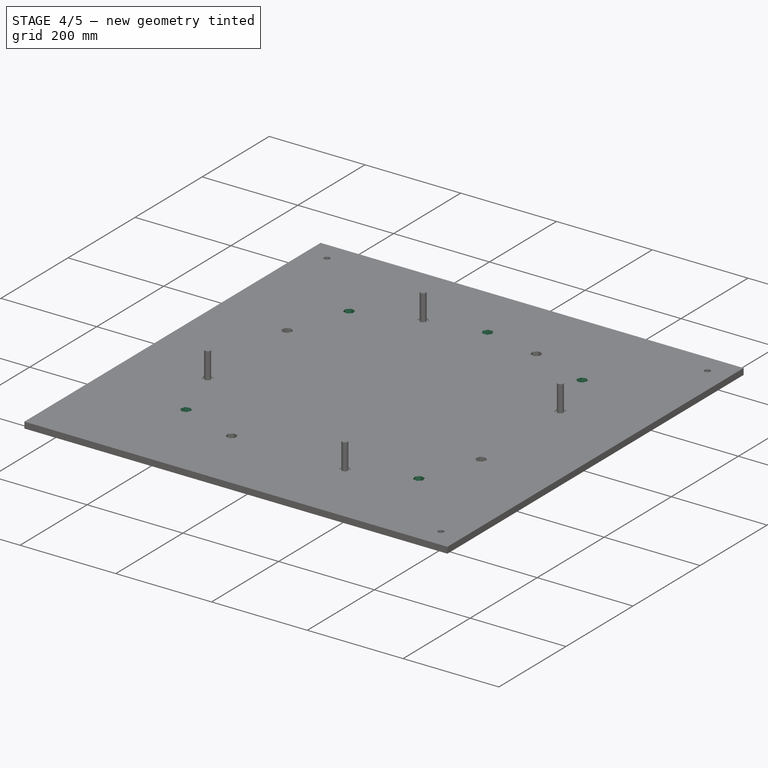
[diagram: stage 4 of 5 — iso view after this stage's code; geometry added in this stage tinted green]
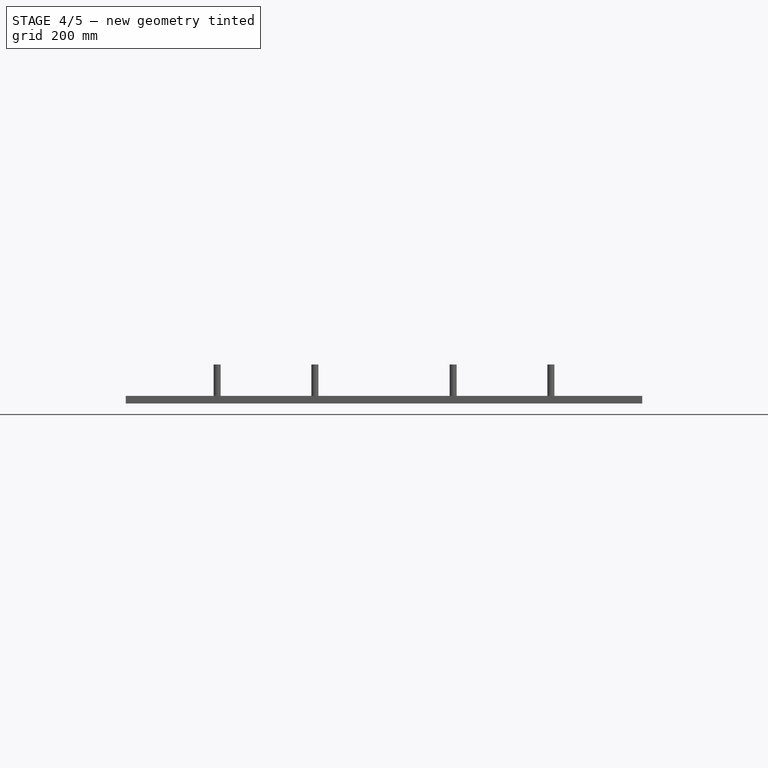
[diagram: stage 4 of 5 — front view after this stage's code; geometry added in this stage tinted green]
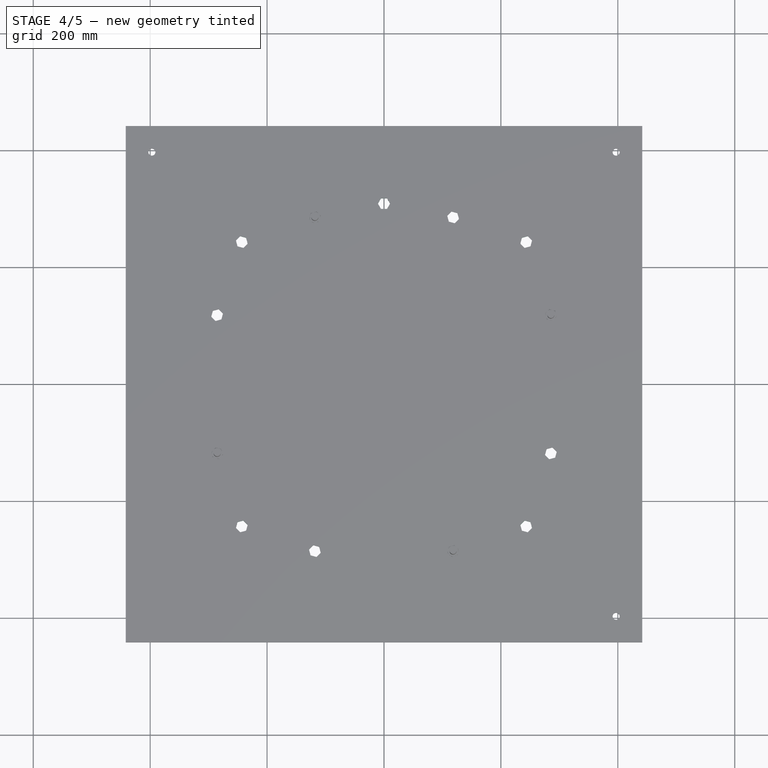
[diagram: stage 4 of 5 — top view after this stage's code; geometry added in this stage tinted green]
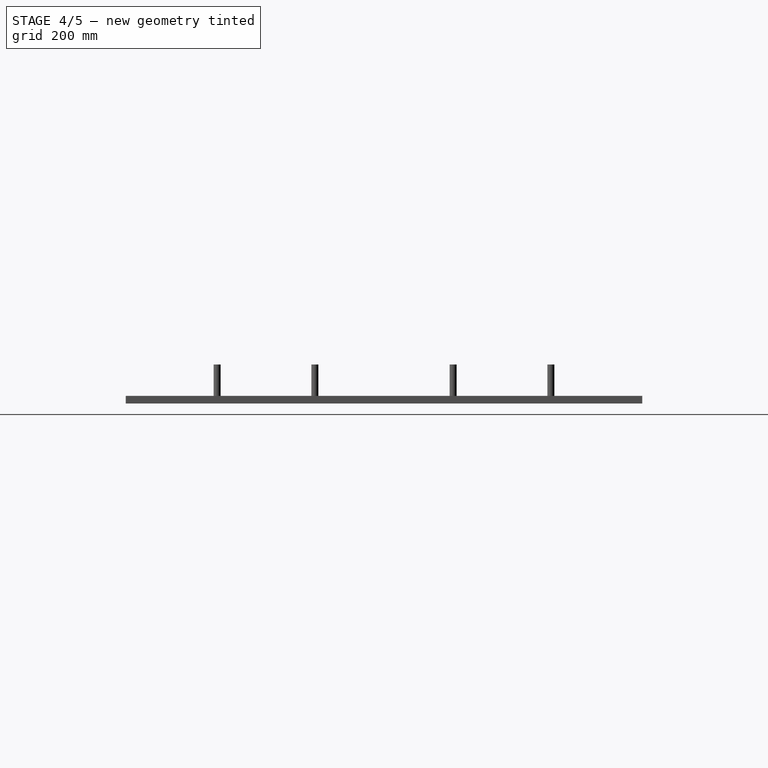
[diagram: stage 4 of 5 — right view after this stage's code; geometry added in this stage tinted green]
FEATURE [PartDesign::Pocket] Pocket002  label="LargeHoleOuterPocket"
  BaseFeature = -> MultiTransform
  Direction = (0,0,-1)
  Length = 5
  Length2 = 100
  Profile = -> Sketch006
  Suppressed = false
  Type = 1
FEATURE [PartDesign::PolarPattern] PolarPattern003  label="LargeHoleOuterPolarPattern"
  Angle = 360
  Axis = -> Sketch006 [N_Axis]
  BaseFeature = -> Pocket002
  Mode = 0
  Occurrences = 4
  Offset = 120
  Originals = -> [Pocket002]
  Suppressed = false
  TransformMode = 0
  expr: Occurrences = Spreadsheet.NumberOfStatorHoles
FEATURE [PartDesign::Pocket] Pocket003  label="LargeHoleInnerPocket"
  BaseFeature = -> PolarPattern003
  Direction = (0,0,-1)
  Length = 5
  Length2 = 100
  Profile = -> Sketch007
  Suppressed = false
  Type = 1
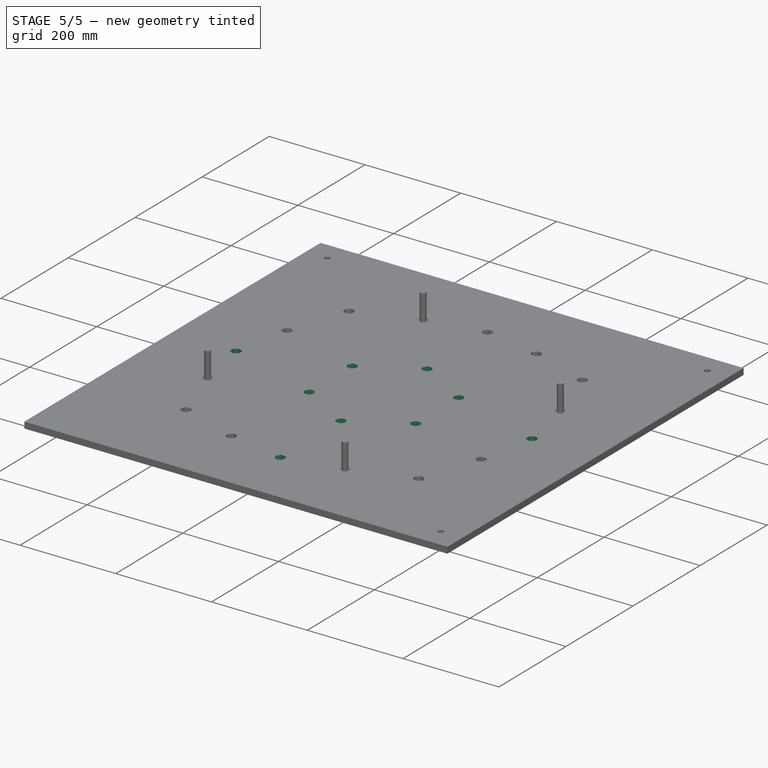
[diagram: stage 5 of 5 — iso view after this stage's code; geometry added in this stage tinted green]
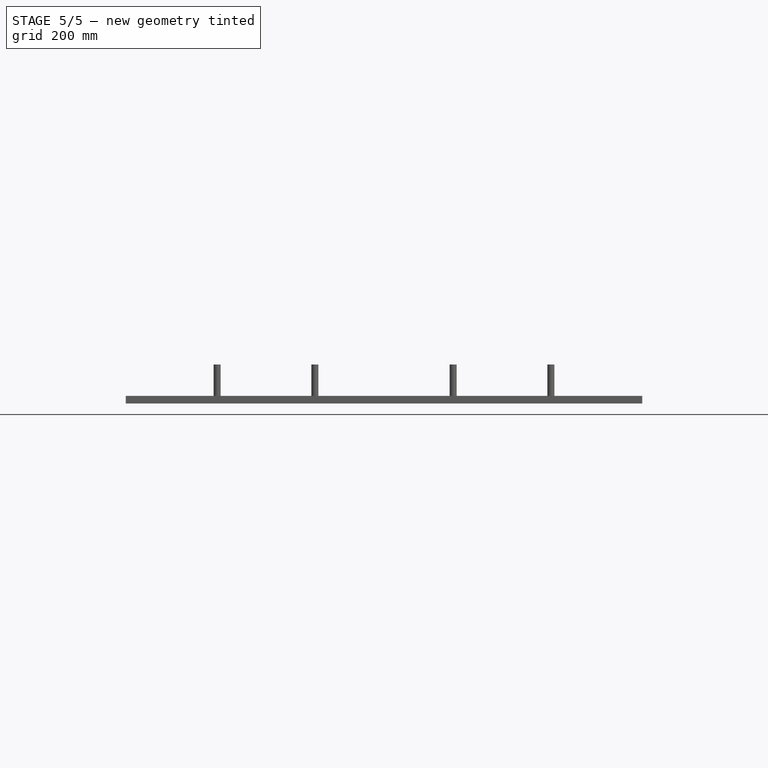
[diagram: stage 5 of 5 — front view after this stage's code; geometry added in this stage tinted green]
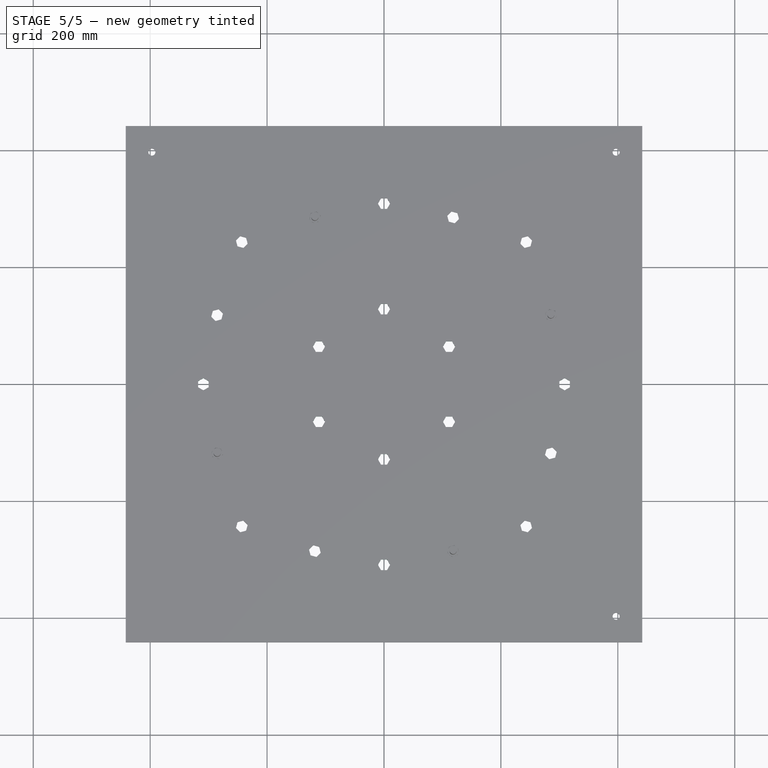
[diagram: stage 5 of 5 — top view after this stage's code; geometry added in this stage tinted green]
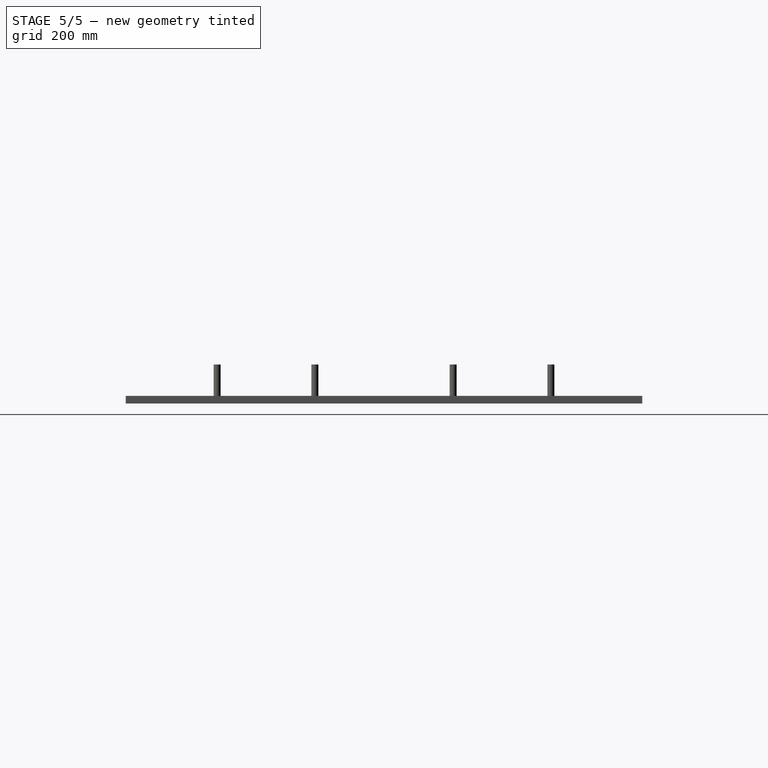
[diagram: stage 5 of 5 — right view after this stage's code; geometry added in this stage tinted green]
FEATURE [PartDesign::PolarPattern] PolarPattern004  label="LargeHoleInnerPolarPattern"
  Angle = 360
  Axis = -> Z_Axis
  BaseFeature = -> Pocket003
  Mode = 0
  Occurrences = 4
  Offset = 120
  Originals = -> [Pocket003]
  Suppressed = false
  TransformMode = 0
  expr: Angle = Spreadsheet.LargeInnerPolarPatternOverallAngle
  expr: Occurrences = Spreadsheet.LargeInnerPolarPatternOccurrences
FEATURE [Spreadsheet::Sheet] Spreadsheet
  cells = A1='Inputs; A2='Spreadsheet; A3='StatorThickness; A4(StatorThickness)==Master_of_Puppets#Spreadsheet.StatorThickness; A5='Alternator; A6='EarSize; B6='NumberOfStatorHoles; C6='IslandInnerRadius; A7(EarSize)==Master_of_Puppets#Alternator.EarSize; B7(NumberOfStatorHoles)==Master_of_Puppets#Alternator.NumberOfStatorHoles; C7(IslandInnerRadius)==Master_of_Puppets#Alternator.IslandInnerRadius; A8='EarAngle; B8='StatorMoldBoltWidthAcrossCorners; C8='StatorHolesCircumradius; A9(EarAngle)==Master_of_Puppets#Alternator.EarAngle; B9(StatorMoldBoltWidthAcrossCorners)==Master_of_Puppets#Alternator.StatorMoldBoltWidthAcrossCorners; C9(StatorHolesCircumradius)==Master_of_Puppets#Alternator.StatorHolesCircumradius; A10='LengthMiddleHoles; B10='StatorMoldIslandNumberOfBolts; C10='StatorMoldHolesSketchAngle; A11(LengthMiddleHoles)==Master_of_Puppets#Alternator.LengthMiddleHoles; B11(StatorMoldIslandNumberOfBolts)==Master_of_Puppets#Alternator.StatorMoldIslandNumberOfBolts; C11(StatorMoldHolesSketchAngle)==Master_of_Puppets#Alternator.StatorMoldHolesSketchAngle; A12='LocatingBolt1X; B12='LocatingBolt1Y; A13(LocatingBolt1X)==Master_of_Puppets#Alternator.LocatingBolt1X; B13(LocatingBolt1Y)==Master_of_Puppets#Alternator.LocatingBolt1Y; A14='LocatingBolt2X; B14='LocatingBolt2Y; A15(LocatingBolt2X)==Master_of_Puppets#Alternator.LocatingBolt2X; B15(LocatingBolt2Y)==Master_of_Puppets#Alternator.LocatingBolt2Y; A16='LocatingBolt3X; B16='LocatingBolt3Y; A17(LocatingBolt3X)==Master_of_Puppets#Alternator.LocatingBolt3X; B17(LocatingBolt3Y)==Master_of_Puppets#Alternator.LocatingBolt3Y; A18='LargeInnerPolarPatternOccurrences; B18='LargeInnerPolarPatternOverallAngle; A19(LargeInnerPolarPatternOccurrences)==Master_of_Puppets#Alternator.LargeInnerPolarPatternOccurrences; B19(LargeInnerPolarPatternOverallAngle)==Master_of_Puppets#Alternator.LargeInnerPolarPatternOverallAngle; A20='Fastener; A21='HexNutThickness; B21='WasherThickness; A22(HexNutThickness)==Master_of_Puppets#Fastener.HexNutThickness; B22(WasherThickness)==Master_of_Puppets#Fastener.WasherThickness; A23='Static; A24='BoltAngle; A25(BoltAngle)==30 deg; A26='Calculated; A27='LargeHoleCircumradius; B27='LargeHoleAngle; C27='Inradius; D27='https://calcresource.com/geom-hexagon.html; A28(LargeHoleCircumradius)==LengthMiddleHoles + EarSize; B28(LargeHoleAngle)==EarAngle / 4; C28(Inradius)==StatorMoldBoltWidthAcrossCorners / 2; A29='Fastener_Middle_X; B29='Fastener_Middle_Y; C29='TopOfStatorMold; D29='Duplicated in Stator_Mold_BoltHeadLayer_Hexagonal; A30(Fastener_Middle_X)==-LengthMiddleHoles * sin(LargeHoleAngle); B30(Fastener_Middle_Y)==-LengthMiddleHoles * cos(LargeHoleAngle); C30(TopOfStatorMold)==StatorThickness * 4; A31='HexNutZ; A32(HexNutZ)==TopOfStatorMold + WasherThickness
FEATURE [Sketcher::SketchObject] Sketch  label="InnerBoltHeadHoleSketch"
  ArcFitTolerance = 0
  AttachmentSupport = -> [DatumPlane001]
  FullyConstrained = true
  MakeInternals = false
  MapMode = 5
  Placement = pos=(0,0,13) rot=(0,0,1;0rad)
  expr: Constraints[1] = Spreadsheet.IslandInnerRadius
  expr: Constraints[33] = Spreadsheet.Inradius
  sketch-geometry (14):
    g0: Circle [constr] CenterX=0 CenterY=0 CenterZ=0 NormalX=0 NormalY=0 NormalZ=1 AngleXU=0 Radius=128.499
    g1: LineSegment StartX=5.19515 StartY=137.497 StartZ=0 EndX=-5.19485 EndY=137.497 EndZ=0
    g2: LineSegment StartX=-5.19485 StartY=137.497 StartZ=0 EndX=-10.3898 EndY=128.499 EndZ=0
    g3: LineSegment StartX=-10.3898 StartY=128.499 StartZ=0 EndX=-5.19485 EndY=119.501 EndZ=0
    g4: LineSegment StartX=-5.19485 StartY=119.501 StartZ=0 EndX=5.19515 EndY=119.501 EndZ=0
    g5: LineSegment StartX=5.19515 StartY=119.501 StartZ=0 EndX=10.3902 EndY=128.499 EndZ=0
    g6: LineSegment StartX=10.3902 StartY=128.499 StartZ=0 EndX=5.19515 EndY=137.497 EndZ=0
    g7: Circle [constr] CenterX=0.000154142 CenterY=128.499 CenterZ=0 NormalX=0 NormalY=0 NormalZ=1 AngleXU=0 Radius=10.39
    g8: LineSegment [constr] StartX=-5.19485 StartY=119.501 StartZ=0 EndX=0.000154142 EndY=128.499 EndZ=0
    g9: LineSegment [constr] StartX=0.000154142 StartY=128.499 StartZ=0 EndX=5.19515 EndY=137.497 EndZ=0
    g10: LineSegment [constr] StartX=10.3902 StartY=128.499 StartZ=0 EndX=0.000154142 EndY=128.499 EndZ=0
    g11: LineSegment [constr] StartX=0.000154142 StartY=128.499 StartZ=0 EndX=-10.3898 EndY=128.499 EndZ=0
    g12: LineSegment [constr] StartX=-5.19485 StartY=137.497 StartZ=0 EndX=0.000154142 EndY=128.499 EndZ=0
    g13: LineSegment [constr] StartX=0.000154142 StartY=128.499 StartZ=0 EndX=5.19515 EndY=119.501 EndZ=0
  constraints (35):
    c: Coincident(g0,g-1)
    c: Radius(g0) = 128.499
    c: Coincident(g1,g2)
    c: Coincident(g2,g3)
    c: Coincident(g3,g4)
    c: Coincident(g4,g5)
    c: Coincident(g5,g6)
    c: Coincident(g6,g1)
    c: PointOnObject(g1,g7)
    c: PointOnObject(g2,g7)
    c: PointOnObject(g3,g7)
    c: PointOnObject(g4,g7)
    c: PointOnObject(g5,g7)
    c: PointOnObject(g6,g7)
    c: PointOnObject(g7,g0)
    c: Coincident(g3,g8)
    c: Coincident(g8,g7)
    c: Coincident(g8,g9)
    c: Coincident(g9,g1)
    c: Coincident(g5,g10)
    c: Coincident(g10,g8)
    c: Tangent(g10,g0)
    c: Coincident(g10,g11)
    c: Coincident(g1,g12)
    c: Coincident(g12,g8)
    c: Coincident(g12,g13)
    c: Coincident(g13,g4)
    c: Angle(g8,g13) = 1.0472
    c: Angle(g13,g10) = 1.0472
    c: Angle(g10,g9) = 1.0472
    c: Angle(g9,g12) = 1.0472
    c: Angle(g11,g8) = 1.0472
    c: Horizontal(g11,g5)
    c: Radius(g7) = 10.39
    c: Coincident(g11,g2)
FEATURE [PartDesign::Pocket] Pocket  label="InnerBoltHeadHolePocket"
  BaseFeature = -> PolarPattern004
  Direction = (0,0,-1)
  Length = 5
  Length2 = 100
  Profile = -> Sketch
  Suppressed = false
  Type = 1
FEATURE [PartDesign::PolarPattern] PolarPattern  label="InnerBoltHeadHolePolarPattern"
  Angle = 360
  Axis = -> Z_Axis
  BaseFeature = -> Pocket
  Mode = 0
  Occurrences = 6
  Offset = 120
  Originals = -> [Pocket]
  Suppressed = false
  TransformMode = 0
  expr: Occurrences = Spreadsheet.StatorMoldIslandNumberOfBolts
FEATURE [App::Link] Link015  label="Washer_LargeInner"
  LinkPlacement = pos=(0,309,0) rot=(0,0,1;0rad)
  LinkedObject = -> <external ../../../Fasteners/Fastener_Washer_StatorMold.FCStd>#Tube
  Placement = pos=(0,309,0) rot=(0,0,1;0rad)
  expr: .Placement.Base.y = Spreadsheet.LengthMiddleHoles
FEATURE [Part::FeaturePython] Array011  label="Washers_LargeInner"  # Draft array (typed FeaturePython)
  AlwaysSyncPlacement = false
  Angle = 360
  ArrayType = 1
  Axis = (0,0,1)
  Base = -> Link015
  Center = (0,0,0)
  Count = 4
  ExpandArray = false
  Fuse = false
  IntervalAxis = (0,0,0)
  IntervalX = (50,0,0)
  IntervalY = (0,50,0)
  IntervalZ = (0,0,50)
  NumberCircles = 3
  NumberPolar = 4
  NumberX = 2
  NumberY = 2
  NumberZ = 1
  PlacementList = 4 placements: [(0,309,0),(-309,6.86118e-14,0),(-3.78416e-14,-309,0),(309,-6.86118e-14,0)]
  RadialDistance = 50
  ScaleList = (4) [(1,1,1),(1,1,1),(1,1,1),(1,1,1)]
  Symmetry = 1
  TangentialDistance = 25
  expr: Angle = Spreadsheet.LargeInnerPolarPatternOverallAngle
  expr: NumberPolar = Spreadsheet.LargeInnerPolarPatternOccurrences
FEATURE [App::Link] Link016  label="Washer_LargeOuter"
  LinkPlacement = pos=(0,-344,0) rot=(0,0,1;0rad)
  LinkedObject = -> <external ../../../Fasteners/Fastener_Washer_StatorMold.FCStd>#Tube
  Placement = pos=(0,-344,0) rot=(0,0,1;0rad)
  expr: .Placement.Base.y = -Spreadsheet.LargeHoleCircumradius
FEATURE [Part::FeaturePython] Array012  label="Washers_LargeOuter"  # Draft array (typed FeaturePython)
  AlwaysSyncPlacement = false
  Angle = 360
  ArrayType = 1
  Axis = (0,0,1)
  Base = -> Link016
  Center = (0,0,0)
  Count = 4
  ExpandArray = false
  Fuse = false
  IntervalAxis = (0,0,0)
  IntervalX = (50,0,0)
  IntervalY = (0,50,0)
  IntervalZ = (0,0,50)
  NumberCircles = 3
  NumberPolar = 4
  NumberX = 2
  NumberY = 2
  NumberZ = 1
  Placement = pos=(0,0,0) rot=(0,0,1;0.785398rad)
  PlacementList = 4 placements: [(0,-344,0),(344,-7.63833e-14,0),(4.21278e-14,344,0),(-344,7.63833e-14,0)]
  RadialDistance = 50
  ScaleList = (4) [(1,1,1),(1,1,1),(1,1,1),(1,1,1)]
  Symmetry = 1
  TangentialDistance = 25
  expr: .Placement.Rotation.Angle = Spreadsheet.StatorMoldHolesSketchAngle
  expr: NumberPolar = Spreadsheet.NumberOfStatorHoles
FEATURE [App::Link] Link017  label="Washer_Inner"
  LinkPlacement = pos=(0,128.499,0) rot=(0,0,1;0rad)
  LinkedObject = -> <external ../../../Fasteners/Fastener_Washer_StatorMold.FCStd>#Tube
  Placement = pos=(0,128.499,0) rot=(0,0,1;0rad)
  expr: .Placement.Base.y = Spreadsheet.IslandInnerRadius
FEATURE [Part::FeaturePython] Array013  label="Washers_Inner"  # Draft array (typed FeaturePython)
  AlwaysSyncPlacement = false
  Angle = 360
  ArrayType = 1
  Axis = (0,0,1)
  Base = -> Link017
  Center = (0,0,0)
  Count = 6
  ExpandArray = false
  Fuse = false
  IntervalAxis = (0,0,0)
  IntervalX = (50,0,0)
  IntervalY = (0,50,0)
  IntervalZ = (0,0,50)
  NumberCircles = 3
  NumberPolar = 6
  NumberX = 2
  NumberY = 2
  NumberZ = 1
  PlacementList = 6 placements: [(0,128.499,0),(-111.284,64.2497,0),(-111.284,-64.2497,0),(-1.57366e-14,-128.499,0),(111.284,-64.2497,0),(111.284,64.2497,0)]
  RadialDistance = 50
  ScaleList = (6) [(1,1,1),(1,1,1),(1,1,1),(1,1,1),(1,1,1),(1,1,1)]
  Symmetry = 1
  TangentialDistance = 25
  expr: NumberPolar = Spreadsheet.StatorMoldIslandNumberOfBolts
FEATURE [App::Part] Part007  label="Washers"
  Group = -> [Link017,Array013,Link015,Array011,Link016,Array012,Part008,Array010,Part006]
  Origin = -> Origin008
  Placement = pos=(0,0,52) rot=(0,0,1;0rad)
  expr: .Placement.Base.z = Spreadsheet.TopOfStatorMold
FEATURE [App::Part] Part001  label="Stator_Mold_BoltHeadLayer_Assembly"
  Group = -> [Binder,Body,Part,Part004,Part007]
  Origin = -> Origin002

RESOLVED EXTERNAL PARTS (link-assembly join: the EXTERNAL_REF files above that resolve inside this repo's crawl, each included once):
---- part ../../../Fasteners/Fastener_Bolt_StatorMold.FCStd = doc fcstd_1490171d4254 ----
FCSTD DOCUMENT  (FreeCAD 0.20R29177 (Git))
Label: Fastener_Bolt_StatorMold
License: All rights reserved
LicenseURL: http://en.wikipedia.org/wiki/All_rights_reserved
objects: PartDesign::SubShapeBinder×1
note: 1 computed .brp shape members not serialized (recipe doc carries the construction recipe); baked Part::Feature solids carry a one-line shape summary decoded from their .brp
EXTERNAL_REF file=Fastener_Bolt_Tail_Vane.FCStd obj=Body

FEATURE [PartDesign::SubShapeBinder] Binder  label="Fastener_Bolt"
  BindCopyOnChange = 2
  BindMode = 0
  ClaimChildren = false
  Fuse = false
  MakeFace = true
  OffsetFill = false
  OffsetIntersection = false
  OffsetJoinType = 0
  OffsetOpenResult = false
  PartialLoad = false
  Relative = true
  Support = -> [<external Fastener_Bolt_Tail_Vane.FCStd>#Body]
  Variant = 2
  _Version = 2
---- part ../../../Fasteners/Fastener_HexNut_StatorMold.FCStd = doc fcstd_f0fe181fced9 ----
FCSTD DOCUMENT  (FreeCAD 0.20R29177 (Git))
Label: Fastener_HexNut_StatorMold
License: All rights reserved
LicenseURL: http://en.wikipedia.org/wiki/All_rights_reserved
objects: PartDesign::SubShapeBinder×1
note: 1 computed .brp shape members not serialized (recipe doc carries the construction recipe); baked Part::Feature solids carry a one-line shape summary decoded from their .brp
EXTERNAL_REF file=Fastener_HexNut.FCStd obj=Body

FEATURE [PartDesign::SubShapeBinder] Binder  label="Fastener_HexNut"
  BindCopyOnChange = 2
  BindMode = 0
  ClaimChildren = false
  Fuse = false
  MakeFace = true
  OffsetFill = false
  OffsetIntersection = false
  OffsetJoinType = 0
  OffsetOpenResult = false
  PartialLoad = false
  Relative = true
  Support = -> [<external Fastener_HexNut.FCStd>#Body]
  Variant = 2
  _Version = 2
---- part ../../../Master_of_Puppets.FCStd = doc fcstd_6404554055c4 (61625 chars; too large to inline — full recipe in that document) ----
---- part Stator_Mold_Base.FCStd = doc fcstd_d0ba9c10f7cb ----
FCSTD DOCUMENT  (FreeCAD 0.20R29177 (Git))
Label: Stator_Mold_Base
License: All rights reserved
LicenseURL: http://en.wikipedia.org/wiki/All_rights_reserved
objects: App::Link×6, App::Part×3, Sketcher::SketchObject×2, PartDesign::Pad×1, PartDesign::Pocket×1, Spreadsheet::Sheet×1, PartDesign::Body×1
note: 7 computed .brp shape members not serialized (recipe doc carries the construction recipe); baked Part::Feature solids carry a one-line shape summary decoded from their .brp
EXTERNAL_REF file=../../../Master_of_Puppets.FCStd obj=Alternator
EXTERNAL_REF file=../../../Master_of_Puppets.FCStd obj=Fastener
EXTERNAL_REF file=../../../Master_of_Puppets.FCStd obj=Spreadsheet
EXTERNAL_REF file=../../../Fasteners/Fastener_Bolt_Locating.FCStd obj=Binder
EXTERNAL_REF file=../../../Fasteners/Fastener_Washer_StatorMold.FCStd obj=Tube

FEATURE [Sketcher::SketchObject] Sketch
  AttachmentOffset = pos=(0,-12.5,0) rot=(0,0,1;0rad)
  FullyConstrained = true
  MapMode = 5
  Placement = pos=(0,-12.5,0) rot=(0,0,1;0rad)
  Support = -> [XY_Plane001]
  expr: .AttachmentOffset.Base.y = Spreadsheet.SketchY
  expr: Constraints[15] = Spreadsheet.StatorMoldSideLength
  sketch-geometry (6):
    g0: LineSegment StartX=-296.825 StartY=296.825 StartZ=0 EndX=296.825 EndY=296.825 EndZ=0
    g1: LineSegment StartX=296.825 StartY=296.825 StartZ=0 EndX=296.825 EndY=-296.825 EndZ=0
    g2: LineSegment StartX=296.825 StartY=-296.825 StartZ=0 EndX=-296.825 EndY=-296.825 EndZ=0
    g3: LineSegment StartX=-296.825 StartY=-296.825 StartZ=0 EndX=-296.825 EndY=296.825 EndZ=0
    g4: LineSegment StartX=-296.825 StartY=296.825 StartZ=0 EndX=296.825 EndY=-296.825 EndZ=0
    g5: LineSegment StartX=296.825 StartY=296.825 StartZ=0 EndX=-296.825 EndY=-296.825 EndZ=0
  constraints (16):
    c: Coincident(g0,g1)
    c: Coincident(g1,g2)
    c: Coincident(g2,g3)
    c: Coincident(g3,g0)
    c: Horizontal(g0)
    c: Horizontal(g2)
    c: Vertical(g1)
    c: Vertical(g3)
    c: Coincident(g4,g0)
    c: Coincident(g4,g1)
    c: Coincident(g5,g0)
    c: Coincident(g5,g2)
    c: PointOnObject(g-1,g5)
    c: PointOnObject(g-1,g4)
    c: Equal(g0,g3)
    c: Distance(g0) = 593.65
FEATURE [PartDesign::Pad] Pad
  AllowMultiFace = false
  Direction = (0,0,1)
  Length = 13
  Length2 = 100
  Profile = -> Sketch
  Type = 0
  expr: Length = Spreadsheet.StatorThickness
FEATURE [Sketcher::SketchObject] Sketch001
  AttachmentOffset = pos=(0,-12.5,0) rot=(0,0,1;0rad)
  FullyConstrained = true
  MapMode = 5
  Placement = pos=(0,-12.5,13) rot=(0,0,1;0rad)
  Support = -> [Pad]
  expr: .AttachmentOffset.Base.y = Spreadsheet.SketchY
  expr: Constraints[14] = Spreadsheet.StatorMoldBoltRadius
  expr: Constraints[5] = 45
  expr: Constraints[8] = Spreadsheet.DistanceOfLocatingHoleFromCenter
  sketch-geometry (6):
    g0: LineSegment StartX=-266.804 StartY=266.804 StartZ=0 EndX=0 EndY=0 EndZ=0
    g1: LineSegment StartX=0 StartY=0 StartZ=0 EndX=266.804 EndY=266.804 EndZ=0
    g2: LineSegment StartX=0 StartY=0 StartZ=0 EndX=266.804 EndY=-266.804 EndZ=0
    g3: Circle CenterX=-266.804 CenterY=266.804 CenterZ=0 NormalX=0 NormalY=0 NormalZ=1 AngleXU=0 Radius=6
    g4: Circle CenterX=266.804 CenterY=266.804 CenterZ=0 NormalX=0 NormalY=0 NormalZ=1 AngleXU=0 Radius=6
    g5: Circle CenterX=266.804 CenterY=-266.804 CenterZ=0 NormalX=0 NormalY=0 NormalZ=1 AngleXU=0 Radius=6
  constraints (15):
    c: Coincident(g0,g-1)
    c: Coincident(g0,g1)
    c: Coincident(g-1,g2)
    c: Parallel(g0,g2)
    c: Perpendicular(g2,g1)
    c: Angle(g-2,g0) = 0.785398
    c: Equal(g0,g1)
    c: Equal(g1,g2)
    c: Distance(g0) = 377.318
    c: Coincident(g3,g0)
    c: Coincident(g5,g2)
    c: Coincident(g4,g1)
    c: Equal(g3,g4)
    c: Equal(g4,g5)
    c: Radius(g3) = 6
FEATURE [PartDesign::Pocket] Pocket
  AllowMultiFace = false
  BaseFeature = -> Pad
  Direction = (0,0,-1)
  Length = 5
  Length2 = 100
  Profile = -> Sketch001
  Type = 1
FEATURE [Spreadsheet::Sheet] Spreadsheet
  cells = A1=Inputs; A2=Spreadsheet; A3=StatorThickness; B3(StatorThickness)==Master_of_Puppets#Spreadsheet.StatorThickness; A4=StatorMoldBoltDiameter; B4(StatorMoldBoltDiameter)==Master_of_Puppets#Alternator.StatorMoldBoltDiameter; A5=RotorDiskRadius; B5(RotorDiskRadius)==Master_of_Puppets#Spreadsheet.RotorDiskRadius; A6=Alternator; A7=StatorHolesCircumradius; B7(StatorHolesCircumradius)==Master_of_Puppets#Alternator.StatorHolesCircumradius; A8=EarSize; B8(EarSize)==Master_of_Puppets#Alternator.EarSize; A9=SketchY; B9(SketchY)==Master_of_Puppets#Alternator.SketchY; A10=StatorMoldSideLength; B10(StatorMoldSideLength)==Master_of_Puppets#Alternator.StatorMoldSideLength; A11=DistanceOfLocatingHoleFromCenter; B11(DistanceOfLocatingHoleFromCenter)==Master_of_Puppets#Alternator.DistanceOfLocatingHoleFromCenter; A12=LocatingBolt1X; B12(LocatingBolt1X)==Master_of_Puppets#Alternator.LocatingBolt1X; A13=LocatingBolt1Y; B13(LocatingBolt1Y)==Master_of_Puppets#Alternator.LocatingBolt1Y; A14=LocatingBolt2X; B14(LocatingBolt2X)==Master_of_Puppets#Alternator.LocatingBolt2X; A15=LocatingBolt2Y; B15(LocatingBolt2Y)==Master_of_Puppets#Alternator.LocatingBolt2Y; A16=LocatingBolt3X; B16(LocatingBolt3X)==Master_of_Puppets#Alternator.LocatingBolt3X; A17=LocatingBolt3Y; B17(LocatingBolt3Y)==Master_of_Puppets#Alternator.LocatingBolt3Y; A18=Fastener; A19=WasherThickness; B19(WasherThickness)==Master_of_Puppets#Fastener.WasherThickness; A20=Calculated; A21=StatorMoldBoltRadius; B21(StatorMoldBoltRadius)==StatorMoldBoltDiameter / 2; A22=BoltZ; B22(BoltZ)==-WasherThickness; A23=NutZ; B23(NutZ)==StatorThickness * 5; A24=WasherZ; B24(WasherZ)==-WasherThickness
FEATURE [PartDesign::Body] PocketBody  label="Stator_Mold_Base"
  Group = -> [Sketch,Pad,Sketch001,Pocket]
  Openafpm_Flat = true
  Origin = -> Origin001
  Tip = -> Pocket
FEATURE [App::Link] Link001  label="Fastener_Bolt2"
  LinkPlacement = pos=(266.804,254.304,-2.5) rot=(0,0,1;0rad)
  LinkedObject = -> Link
  Placement = pos=(266.804,254.304,-2.5) rot=(0,0,1;0rad)
  expr: .Placement.Base.x = Spreadsheet.LocatingBolt2X
  expr: .Placement.Base.y = Spreadsheet.LocatingBolt2Y
  expr: .Placement.Base.z = Spreadsheet.BoltZ
FEATURE [App::Link] Link002  label="Fastener_Bolt3"
  LinkPlacement = pos=(266.804,-279.304,-2.5) rot=(0,0,1;0rad)
  LinkedObject = -> Link001
  Placement = pos=(266.804,-279.304,-2.5) rot=(0,0,1;0rad)
  expr: .Placement.Base.x = Spreadsheet.LocatingBolt3X
  expr: .Placement.Base.y = Spreadsheet.LocatingBolt3Y
  expr: .Placement.Base.z = Spreadsheet.BoltZ
FEATURE [App::Link] Link  label="Fastener_Bolt1"
  LinkPlacement = pos=(-266.804,254.304,-2.5) rot=(0,0,1;0rad)
  LinkedObject = -> <external ../../../Fasteners/Fastener_Bolt_Locating.FCStd>#Binder
  Placement = pos=(-266.804,254.304,-2.5) rot=(0,0,1;0rad)
  Scale = -1
  ScaleVector = (-1,-1,-1)
  expr: .Placement.Base.x = Spreadsheet.LocatingBolt1X
  expr: .Placement.Base.y = Spreadsheet.LocatingBolt1Y
  expr: .Placement.Base.z = Spreadsheet.BoltZ
FEATURE [App::Part] Part  label="LocatingBolts"
  Group = -> [Link,Link001,Link002]
  Origin = -> Origin
FEATURE [App::Link] Link003  label="Washer1"
  LinkPlacement = pos=(-266.804,254.304,-2.5) rot=(0,0,1;0rad)
  LinkedObject = -> <external ../../../Fasteners/Fastener_Washer_StatorMold.FCStd>#Tube
  Placement = pos=(-266.804,254.304,-2.5) rot=(0,0,1;0rad)
  expr: .Placement.Base.x = Spreadsheet.LocatingBolt1X
  expr: .Placement.Base.y = Spreadsheet.LocatingBolt1Y
  expr: .Placement.Base.z = Spreadsheet.WasherZ
FEATURE [App::Link] Link004  label="Washer2"
  LinkPlacement = pos=(266.804,254.304,-2.5) rot=(0,0,1;0rad)
  LinkedObject = -> Link003
  Placement = pos=(266.804,254.304,-2.5) rot=(0,0,1;0rad)
  expr: .Placement.Base.x = Spreadsheet.LocatingBolt2X
  expr: .Placement.Base.y = Spreadsheet.LocatingBolt2Y
  expr: .Placement.Base.z = Spreadsheet.WasherZ
FEATURE [App::Link] Link005  label="Washer3"
  LinkPlacement = pos=(266.804,-279.304,-2.5) rot=(0,0,1;0rad)
  LinkedObject = -> Link004
  Placement = pos=(266.804,-279.304,-2.5) rot=(0,0,1;0rad)
  expr: .Placement.Base.x = Spreadsheet.LocatingBolt3X
  expr: .Placement.Base.y = Spreadsheet.LocatingBolt3Y
  expr: .Placement.Base.z = Spreadsheet.WasherZ
FEATURE [App::Part] Part002  label="LocatingWashers"
  Group = -> [Link003,Link004,Link005]
  Origin = -> Origin003
FEATURE [App::Part] Part001  label="Stator_Mold_Base_Assembly"
  Group = -> [PocketBody,Part,Part002]
  Origin = -> Origin002
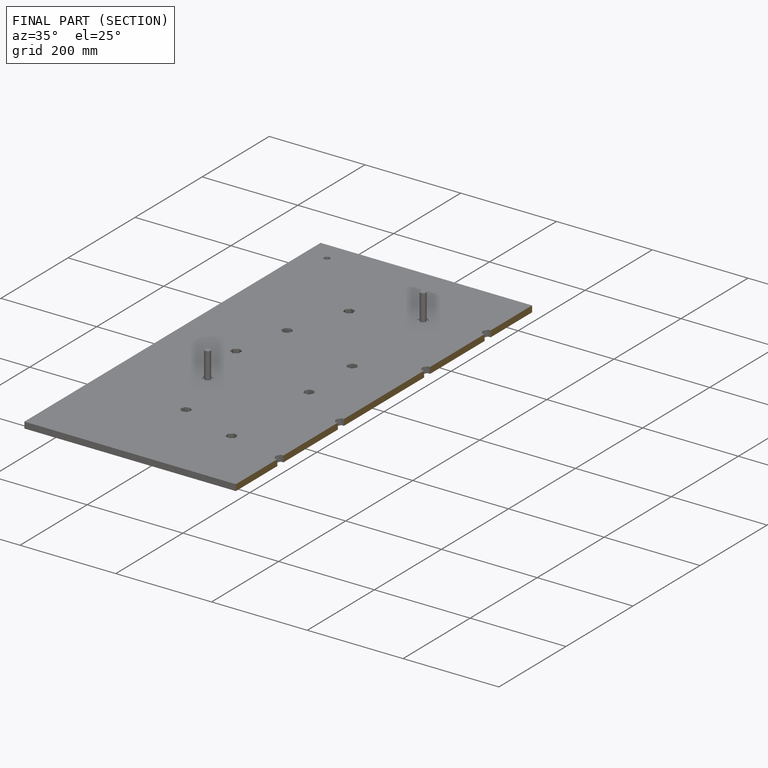
[diagram: finished part — half-section view (interior)]
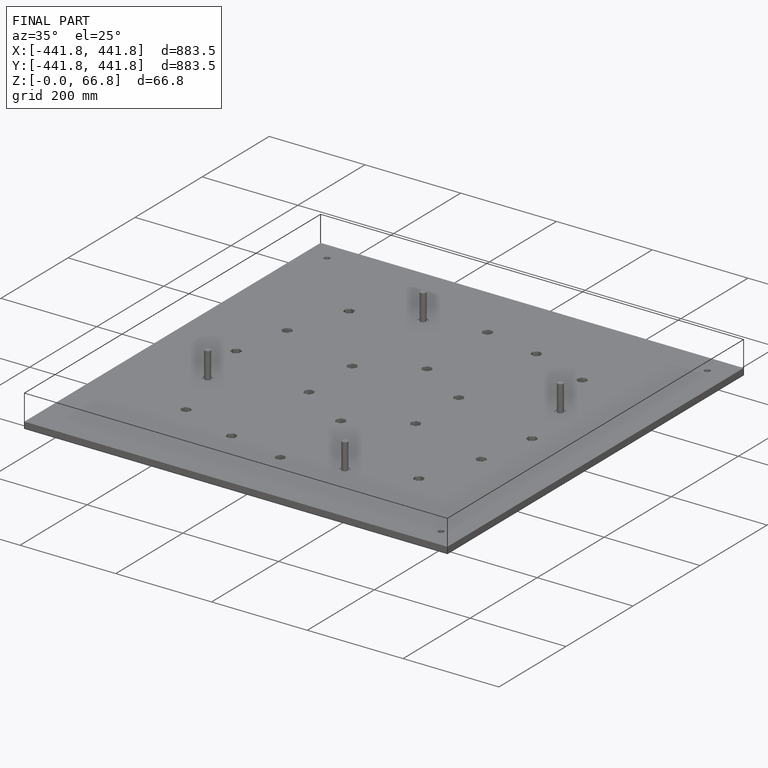
[diagram: finished part — iso view with bounding-box wireframe]
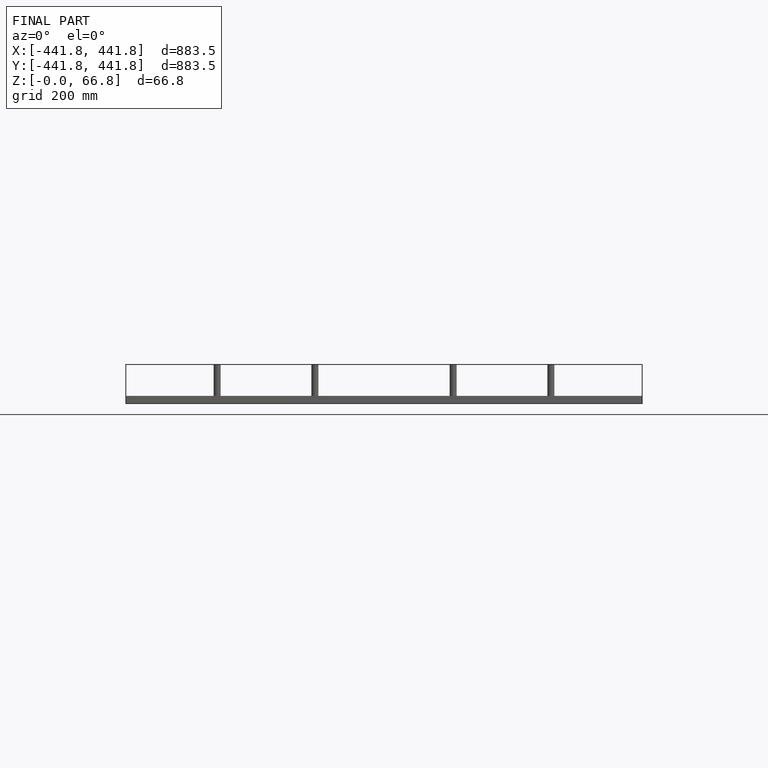
[diagram: finished part — front view with bounding-box wireframe]
